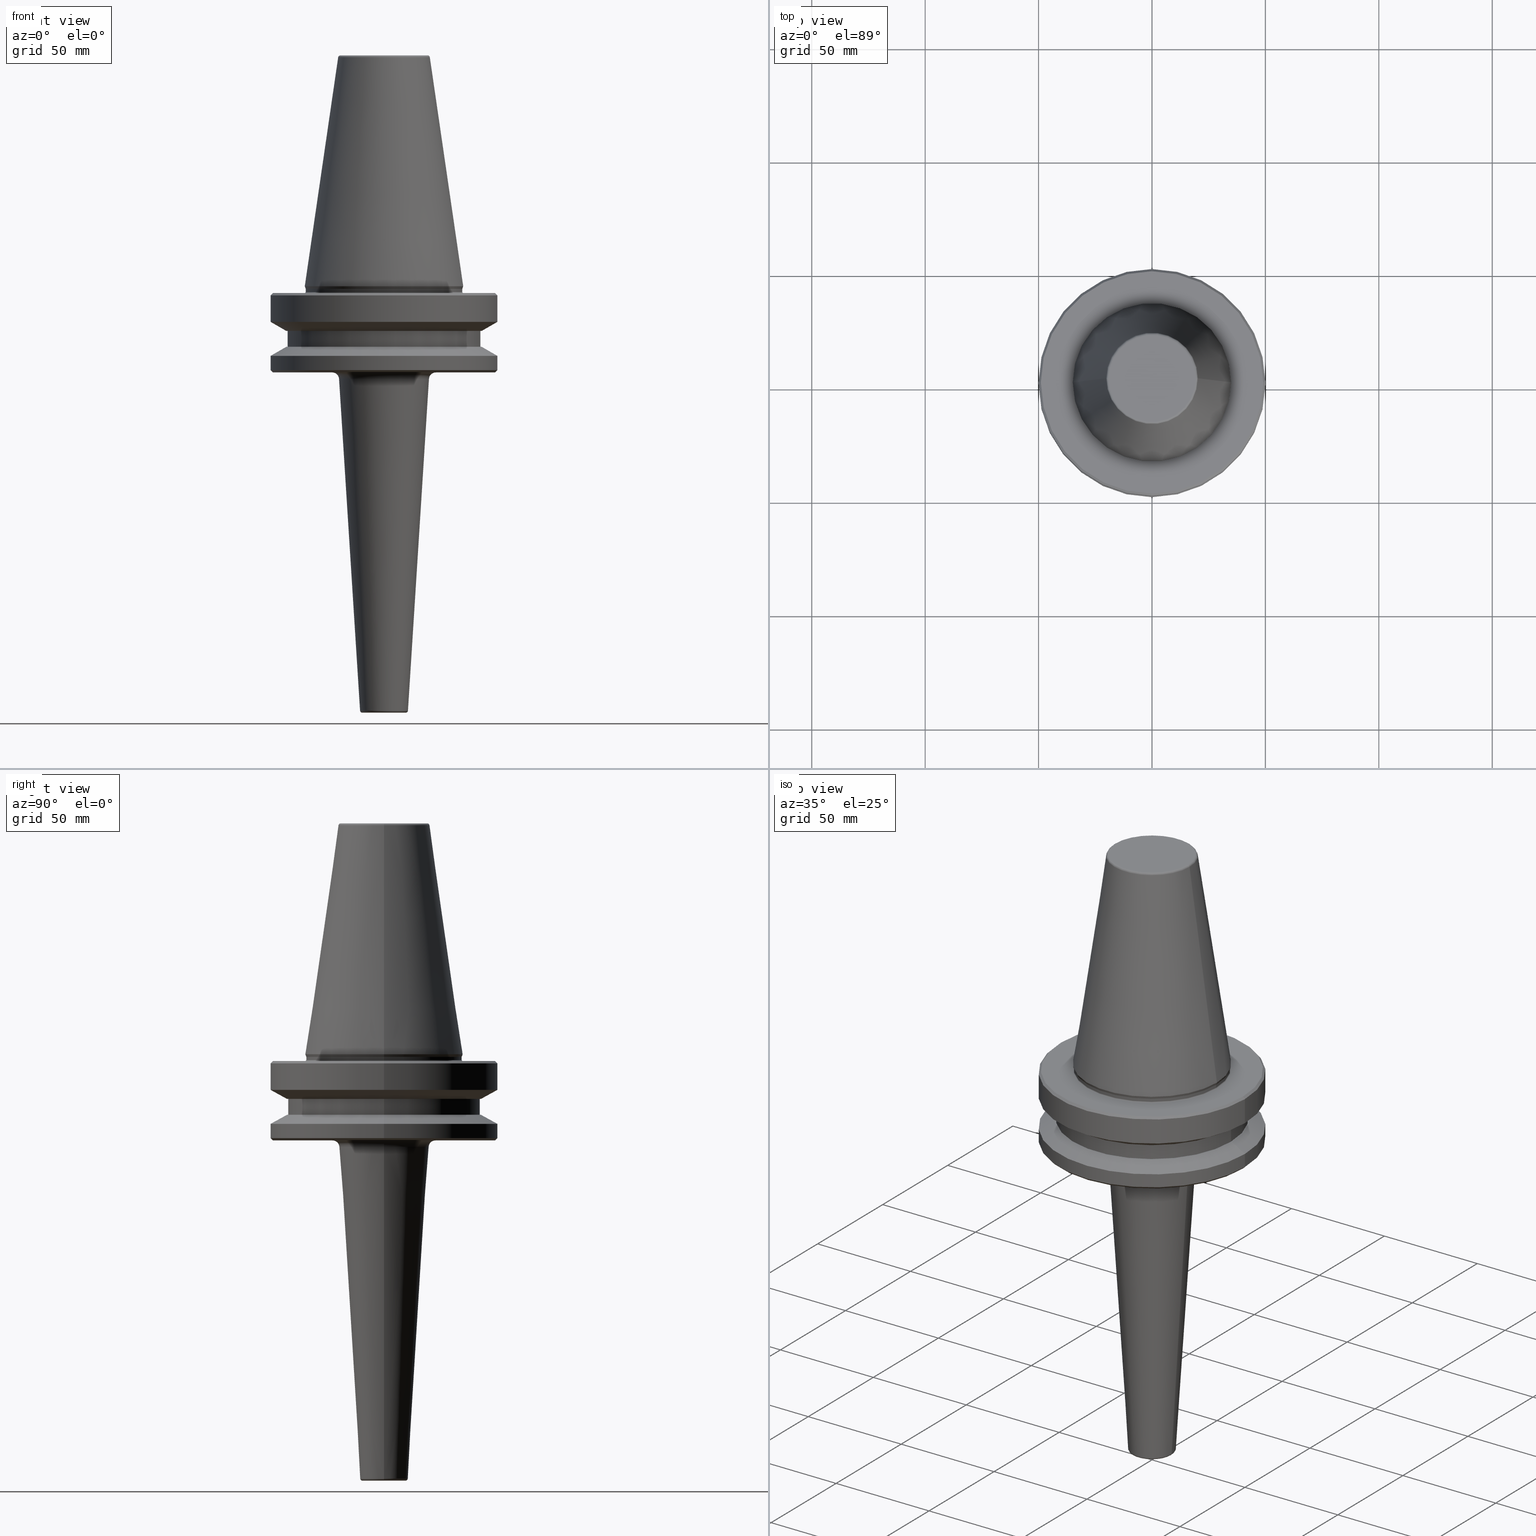
[diagram: canonical four-view strip — front | top / right | iso, engineering-drawing reading convention]
A machine part, canonical four-view strip (front | top / right | iso — engineering-drawing reading convention). The complete STEP part file that produces these views, byte-faithful:
ISO-10303-21;
HEADER;
FILE_DESCRIPTION (( 'STEP AP203' ),
    '1' );
FILE_NAME ('BT50 MCA12 150 AD+B-2.5G 25000 SL.STEP',
    '2019-05-24T11:00:16',
    ( '' ),
    ( '' ),
    'SwSTEP 2.0',
    'SolidWorks 2014',
    '' );
FILE_SCHEMA (( 'CONFIG_CONTROL_DESIGN' ));
ENDSEC;

DATA;
#1 = CC_DESIGN_PERSON_AND_ORGANIZATION_ASSIGNMENT ( #730, #652, ( #895 ) ) ;
#2 = APPLICATION_CONTEXT ( 'configuration controlled 3d designs of mechanical parts and assemblies' ) ;
#3 = DIRECTION ( 'NONE',  ( 0.8660254037844383700, 1.060575238724906500E-016, -0.5000000000000004400 ) ) ;
#4 = DIRECTION ( 'NONE',  ( -0.0000000000000000000, -0.0000000000000000000, 1.000000000000000000 ) ) ;
#5 = APPROVAL_ROLE ( '' ) ;
#6 = DESIGN_CONTEXT ( 'detailed design', #485, 'design' ) ;
#7 = FACE_BOUND ( 'NONE', #844, .T. ) ;
#8 = CIRCLE ( 'NONE', #531, 35.00000000000000000 ) ;
#9 = EDGE_LOOP ( 'NONE', ( #82, #44, #76, #940 ) ) ;
#10 = ORIENTED_EDGE ( 'NONE', *, *, #566, .F. ) ;
#11 = VECTOR ( 'NONE', #814, 1000.000000000000000 ) ;
#12 = CYLINDRICAL_SURFACE ( 'NONE', #778, 50.00000000000000000 ) ;
#13 = CARTESIAN_POINT ( 'NONE',  ( -42.50000000000000000, 5.204748896376250900E-015, -19.70000000000001000 ) ) ;
#14 = CONICAL_SURFACE ( 'NONE', #766, 34.50000000000000000, 0.3490658503988654500 ) ;
#15 = AXIS2_PLACEMENT_3D ( 'NONE', #463, #208, #75 ) ;
#16 = CONICAL_SURFACE ( 'NONE', #250, 43.07217782649103600, 1.047197551196598100 ) ;
#17 = DIRECTION ( 'NONE',  ( 0.1443082272673000800, 1.767266086135278300E-017, -0.9895327864921754600 ) ) ;
#18 = CARTESIAN_POINT ( 'NONE',  ( 20.00000000000003900, 0.0000000000000000000, -38.00000000000000700 ) ) ;
#19 = DATE_AND_TIME ( #247, #466 ) ;
#20 = FACE_BOUND ( 'NONE', #962, .T. ) ;
#21 = CARTESIAN_POINT ( 'NONE',  ( 49.00000000000000000, 0.0000000000000000000, -38.00000000000002100 ) ) ;
#22 = ORIENTED_EDGE ( 'NONE', *, *, #495, .F. ) ;
#23 = DIRECTION ( 'NONE',  ( -0.0000000000000000000, -0.0000000000000000000, 1.000000000000000000 ) ) ;
#24 = CARTESIAN_POINT ( 'NONE',  ( 0.0000000000000000000, 0.0000000000000000000, -2.500000000000002200 ) ) ;
#25 = AXIS2_PLACEMENT_3D ( 'NONE', #817, #663, #263 ) ;
#26 = ORIENTED_EDGE ( 'NONE', *, *, #341, .F. ) ;
#27 = DIRECTION ( 'NONE',  ( -0.0000000000000000000, -0.0000000000000000000, 1.000000000000000000 ) ) ;
#28 = CIRCLE ( 'NONE', #214, 9.561329784881056800 ) ;
#29 = CARTESIAN_POINT ( 'NONE',  ( -20.00000000000003900, 2.449293598294710900E-015, -38.00000000000000700 ) ) ;
#30 = CIRCLE ( 'NONE', #38, 10.55933024260852400 ) ;
#31 = AXIS2_PLACEMENT_3D ( 'NONE', #772, #901, #605 ) ;
#32 = ORIENTED_EDGE ( 'NONE', *, *, #337, .T. ) ;
#33 = CARTESIAN_POINT ( 'NONE',  ( -34.50000000000000000, 4.225031457058368900E-015, -1.167677903268202300 ) ) ;
#34 = DIRECTION ( 'NONE',  ( -0.0000000000000000000, -0.0000000000000000000, 1.000000000000000000 ) ) ;
#35 = ORIENTED_EDGE ( 'NONE', *, *, #649, .F. ) ;
#36 = DIRECTION ( 'NONE',  ( -0.3420201433256682700, 4.188538737676986200E-017, 0.9396926207859086500 ) ) ;
#37 = AXIS2_PLACEMENT_3D ( 'NONE', #647, #865, #68 ) ;
#38 = AXIS2_PLACEMENT_3D ( 'NONE', #477, #854, #396 ) ;
#39 = FACE_OUTER_BOUND ( 'NONE', #713, .T. ) ;
#40 = DIRECTION ( 'NONE',  ( -0.0000000000000000000, -0.0000000000000000000, 1.000000000000000000 ) ) ;
#41 = CARTESIAN_POINT ( 'NONE',  ( 50.00000000000000000, 6.123233995736766100E-015, -3.999999999999989800 ) ) ;
#42 = PERSON_AND_ORGANIZATION ( #453, #924 ) ;
#43 = DIRECTION ( 'NONE',  ( -0.0000000000000000000, -0.0000000000000000000, 1.000000000000000000 ) ) ;
#44 = ORIENTED_EDGE ( 'NONE', *, *, #635, .T. ) ;
#45 = AXIS2_PLACEMENT_3D ( 'NONE', #125, #717, #793 ) ;
#46 = DIRECTION ( 'NONE',  ( 0.0000000000000000000, 0.0000000000000000000, -1.000000000000000000 ) ) ;
#47 = DIRECTION ( 'NONE',  ( 1.000000000000000000, 0.0000000000000000000, 0.0000000000000000000 ) ) ;
#48 = CARTESIAN_POINT ( 'NONE',  ( 49.00000000000000000, 6.062001655779398500E-015, -2.999999999999988900 ) ) ;
#49 = CARTESIAN_POINT ( 'NONE',  ( 0.0000000000000000000, 0.0000000000000000000, -40.81037991303176700 ) ) ;
#50 = CONICAL_SURFACE ( 'NONE', #549, 49.00000000000000000, 0.7853981633974482800 ) ;
#51 = DIRECTION ( 'NONE',  ( 1.000000000000000000, 0.0000000000000000000, 0.0000000000000000000 ) ) ;
#52 = ORIENTED_EDGE ( 'NONE', *, *, #473, .T. ) ;
#53 = DIRECTION ( 'NONE',  ( 1.000000000000000000, 0.0000000000000000000, 0.0000000000000000000 ) ) ;
#54 = ORIENTED_EDGE ( 'NONE', *, *, #607, .F. ) ;
#55 = VECTOR ( 'NONE', #43, 1000.000000000000000 ) ;
#56 = VERTEX_POINT ( 'NONE', #173 ) ;
#57 = DIRECTION ( 'NONE',  ( 1.000000000000000000, 0.0000000000000000000, 0.0000000000000000000 ) ) ;
#58 = CARTESIAN_POINT ( 'NONE',  ( -22.81601064535710300, 2.794155440614850900E-015, -38.00000000000000700 ) ) ;
#59 = AXIS2_PLACEMENT_3D ( 'NONE', #449, #46, #389 ) ;
#60 = PERSON_AND_ORGANIZATION ( #453, #924 ) ;
#61 = FACE_OUTER_BOUND ( 'NONE', #633, .T. ) ;
#62 = CIRCLE ( 'NONE', #711, 20.20381605152244500 ) ;
#63 = AXIS2_PLACEMENT_3D ( 'NONE', #870, #336, #426 ) ;
#64 = DIRECTION ( 'NONE',  ( -0.0000000000000000000, -0.0000000000000000000, 1.000000000000000000 ) ) ;
#65 = DIRECTION ( 'NONE',  ( -0.0000000000000000000, -0.0000000000000000000, 1.000000000000000000 ) ) ;
#66 = VECTOR ( 'NONE', #3, 1000.000000000000000 ) ;
#67 = DIRECTION ( 'NONE',  ( -0.0000000000000000000, -0.0000000000000000000, 1.000000000000000000 ) ) ;
#68 = DIRECTION ( 'NONE',  ( 1.000000000000000000, 0.0000000000000000000, 0.0000000000000000000 ) ) ;
#69 = CARTESIAN_POINT ( 'NONE',  ( 0.0000000000000000000, 0.0000000000000000000, -1.167677903268202300 ) ) ;
#70 = ORIENTED_EDGE ( 'NONE', *, *, #864, .F. ) ;
#71 = AXIS2_PLACEMENT_3D ( 'NONE', #24, #930, #737 ) ;
#72 = ADVANCED_FACE ( 'NONE', ( #972 ), #16, .T. ) ;
#73 = SECURITY_CLASSIFICATION_LEVEL ( 'unclassified' ) ;
#74 = CARTESIAN_POINT ( 'NONE',  ( 0.0000000000000000000, 0.0000000000000000000, 100.7999999999999800 ) ) ;
#75 = DIRECTION ( 'NONE',  ( -1.000000000000000000, 1.224646799147353500E-016, 0.0000000000000000000 ) ) ;
#76 = ORIENTED_EDGE ( 'NONE', *, *, #412, .F. ) ;
#77 = PRODUCT_DEFINITION_FORMATION_WITH_SPECIFIED_SOURCE ( 'ANY', '', #895, .NOT_KNOWN. ) ;
#78 = CARTESIAN_POINT ( 'NONE',  ( 0.0000000000000000000, 0.0000000000000000000, 0.0000000000000000000 ) ) ;
#79 = VECTOR ( 'NONE', #227, 1000.000000000000000 ) ;
#80 =( GEOMETRIC_REPRESENTATION_CONTEXT ( 3 ) GLOBAL_UNCERTAINTY_ASSIGNED_CONTEXT ( ( #731 ) ) GLOBAL_UNIT_ASSIGNED_CONTEXT ( ( #868, #328, #934 ) ) REPRESENTATION_CONTEXT ( 'NONE', 'WORKASPACE' ) );
#81 = DIRECTION ( 'NONE',  ( -0.0000000000000000000, -0.0000000000000000000, 1.000000000000000000 ) ) ;
#82 = ORIENTED_EDGE ( 'NONE', *, *, #258, .T. ) ;
#83 = DIRECTION ( 'NONE',  ( 1.000000000000000000, 0.0000000000000000000, 0.0000000000000000000 ) ) ;
#84 = DIRECTION ( 'NONE',  ( 1.000000000000000000, 0.0000000000000000000, 0.0000000000000000000 ) ) ;
#85 = CIRCLE ( 'NONE', #119, 50.00000000000000000 ) ;
#86 = COORDINATED_UNIVERSAL_TIME_OFFSET ( 5, 30, .AHEAD. ) ;
#87 = AXIS2_PLACEMENT_3D ( 'NONE', #779, #858, #706 ) ;
#88 = CARTESIAN_POINT ( 'NONE',  ( 22.81601064535710300, 0.0000000000000000000, -41.00000000000000700 ) ) ;
#89 = CIRCLE ( 'NONE', #512, 50.00000000000000000 ) ;
#90 = CARTESIAN_POINT ( 'NONE',  ( 34.50000000000000000, 0.0000000000000000000, -2.499999999999988500 ) ) ;
#91 = VECTOR ( 'NONE', #979, 1000.000000000000000 ) ;
#92 = ORIENTED_EDGE ( 'NONE', *, *, #372, .F. ) ;
#93 = CARTESIAN_POINT ( 'NONE',  ( 0.0000000000000000000, 0.0000000000000000000, 100.9443082272672900 ) ) ;
#94 = ADVANCED_FACE ( 'NONE', ( #438 ), #813, .T. ) ;
#95 = DIRECTION ( 'NONE',  ( 1.000000000000000000, 0.0000000000000000000, 0.0000000000000000000 ) ) ;
#96 = AXIS2_PLACEMENT_3D ( 'NONE', #184, #180, #83 ) ;
#97 = ORIENTED_EDGE ( 'NONE', *, *, #346, .F. ) ;
#98 = CARTESIAN_POINT ( 'NONE',  ( 0.0000000000000000000, 0.0000000000000000000, -26.69999999999998900 ) ) ;
#99 = AXIS2_PLACEMENT_3D ( 'NONE', #133, #65, #669 ) ;
#100 = DIRECTION ( 'NONE',  ( 1.000000000000000000, 0.0000000000000000000, 0.0000000000000000000 ) ) ;
#101 = CARTESIAN_POINT ( 'NONE',  ( 0.0000000000000000000, 0.0000000000000000000, -38.00000000000000700 ) ) ;
#102 = ADVANCED_FACE ( 'NONE', ( #241 ), #574, .F. ) ;
#103 = CARTESIAN_POINT ( 'NONE',  ( 0.0000000000000000000, 0.0000000000000000000, 124.5046326327850600 ) ) ;
#104 = ORIENTED_EDGE ( 'NONE', *, *, #936, .F. ) ;
#105 = EDGE_LOOP ( 'NONE', ( #590, #52, #660, #921 ) ) ;
#106 = EDGE_LOOP ( 'NONE', ( #636, #32, #176, #675 ) ) ;
#107 = VERTEX_POINT ( 'NONE', #963 ) ;
#108 = AXIS2_PLACEMENT_3D ( 'NONE', #998, #918, #127 ) ;
#109 = CARTESIAN_POINT ( 'NONE',  ( 0.0000000000000000000, 0.0000000000000000000, -38.00000000000000700 ) ) ;
#110 = ORIENTED_EDGE ( 'NONE', *, *, #919, .T. ) ;
#111 = CARTESIAN_POINT ( 'NONE',  ( 0.0000000000000000000, 0.0000000000000000000, -3.999999999999989800 ) ) ;
#112 = CIRCLE ( 'NONE', #621, 0.9999999999999974500 ) ;
#113 = DIRECTION ( 'NONE',  ( 0.0000000000000000000, 0.0000000000000000000, -1.000000000000000000 ) ) ;
#114 = SHAPE_DEFINITION_REPRESENTATION ( #353, #700 ) ;
#115 = CIRCLE ( 'NONE', #243, 34.92499999999999700 ) ;
#116 = CARTESIAN_POINT ( 'NONE',  ( 0.0000000000000000000, 0.0000000000000000000, 0.0000000000000000000 ) ) ;
#117 = AXIS2_PLACEMENT_3D ( 'NONE', #303, #351, #697 ) ;
#118 = ORIENTED_EDGE ( 'NONE', *, *, #841, .F. ) ;
#119 = AXIS2_PLACEMENT_3D ( 'NONE', #805, #34, #144 ) ;
#120 = FACE_OUTER_BOUND ( 'NONE', #206, .T. ) ;
#121 = DIRECTION ( 'NONE',  ( 1.000000000000000000, 0.0000000000000000000, 0.0000000000000000000 ) ) ;
#122 = EDGE_CURVE ( 'NONE', #395, #400, #138, .T. ) ;
#123 = ORIENTED_EDGE ( 'NONE', *, *, #399, .T. ) ;
#124 = EDGE_CURVE ( 'NONE', #385, #525, #317, .T. ) ;
#125 = CARTESIAN_POINT ( 'NONE',  ( 0.0000000000000000000, 43.07217782649103600, -19.70000000000000300 ) ) ;
#126 = ORIENTED_EDGE ( 'NONE', *, *, #573, .F. ) ;
#127 = DIRECTION ( 'NONE',  ( 1.000000000000000000, 0.0000000000000000000, 0.0000000000000000000 ) ) ;
#128 = ORIENTED_EDGE ( 'NONE', *, *, #211, .T. ) ;
#129 = AXIS2_PLACEMENT_3D ( 'NONE', #229, #945, #744 ) ;
#130 = DIRECTION ( 'NONE',  ( 1.000000000000000000, 0.0000000000000000000, 0.0000000000000000000 ) ) ;
#131 = EDGE_LOOP ( 'NONE', ( #955, #727, #784, #35 ) ) ;
#132 = CIRCLE ( 'NONE', #59, 19.82200927217469300 ) ;
#133 = CARTESIAN_POINT ( 'NONE',  ( 0.0000000000000000000, 0.0000000000000000000, -15.70022000322675400 ) ) ;
#134 = AXIS2_PLACEMENT_3D ( 'NONE', #627, #911, #47 ) ;
#135 = VERTEX_POINT ( 'NONE', #220 ) ;
#136 = ORIENTED_EDGE ( 'NONE', *, *, #523, .F. ) ;
#137 = CARTESIAN_POINT ( 'NONE',  ( -50.00000000000000000, 0.0000000000000000000, -3.999999999999989800 ) ) ;
#138 = CIRCLE ( 'NONE', #570, 43.07217782649105000 ) ;
#139 = EDGE_CURVE ( 'NONE', #339, #56, #154, .T. ) ;
#140 = CC_DESIGN_PERSON_AND_ORGANIZATION_ASSIGNMENT ( #222, #927, ( #150 ) ) ;
#141 = DIRECTION ( 'NONE',  ( -0.7071067811865474600, 8.659560562354931600E-017, 0.7071067811865475700 ) ) ;
#142 = CARTESIAN_POINT ( 'NONE',  ( -50.00000000000000000, 0.0000000000000000000, -30.69977999677324500 ) ) ;
#143 = ADVANCED_FACE ( 'NONE', ( #315 ), #171, .T. ) ;
#144 = DIRECTION ( 'NONE',  ( 1.000000000000000000, 0.0000000000000000000, 0.0000000000000000000 ) ) ;
#145 = CLOSED_SHELL ( 'NONE', ( #309, #366, #201, #792, #143, #235, #480, #178, #798, #539, #72, #500, #609, #94, #867, #386, #723, #376, #256, #554, #189, #1002, #975, #726, #151, #838, #969, #843, #757, #767, #740, #183, #352, #505, #478, #102 ) ) ;
#146 = FACE_OUTER_BOUND ( 'NONE', #774, .T. ) ;
#147 = ORIENTED_EDGE ( 'NONE', *, *, #268, .T. ) ;
#148 = ORIENTED_EDGE ( 'NONE', *, *, #506, .F. ) ;
#149 = AXIS2_PLACEMENT_3D ( 'NONE', #249, #785, #855 ) ;
#150 = SECURITY_CLASSIFICATION ( '', '', #73 ) ;
#151 = ADVANCED_FACE ( 'NONE', ( #340 ), #152, .T. ) ;
#152 = CONICAL_SURFACE ( 'NONE', #646, 50.00000000000000000, 0.7853981633974482800 ) ;
#153 = TOROIDAL_SURFACE ( 'NONE', #71, 35.00000000000000000, 0.5000000000000004400 ) ;
#154 = LINE ( 'NONE', #833, #383 ) ;
#155 = AXIS2_PLACEMENT_3D ( 'NONE', #729, #182, #581 ) ;
#156 = DIRECTION ( 'NONE',  ( -0.0000000000000000000, -0.0000000000000000000, 1.000000000000000000 ) ) ;
#157 = VERTEX_POINT ( 'NONE', #471 ) ;
#158 = DATE_AND_TIME ( #390, #591 ) ;
#159 = VERTEX_POINT ( 'NONE', #213 ) ;
#160 = ORIENTED_EDGE ( 'NONE', *, *, #338, .T. ) ;
#161 = CARTESIAN_POINT ( 'NONE',  ( 42.50000000000000000, 0.0000000000000000000, 124.5046326327850600 ) ) ;
#162 = CYLINDRICAL_SURFACE ( 'NONE', #96, 50.00000000000000000 ) ;
#163 = CYLINDRICAL_SURFACE ( 'NONE', #898, 34.50000000000000000 ) ;
#164 = ORIENTED_EDGE ( 'NONE', *, *, #365, .T. ) ;
#165 = AXIS2_PLACEMENT_3D ( 'NONE', #347, #364, #639 ) ;
#166 = APPLICATION_PROTOCOL_DEFINITION ( 'international standard', 'config_control_design', 1994, #485 ) ;
#167 = ORIENTED_EDGE ( 'NONE', *, *, #522, .F. ) ;
#168 = DIRECTION ( 'NONE',  ( 1.000000000000000000, 0.0000000000000000000, 0.0000000000000000000 ) ) ;
#169 = VECTOR ( 'NONE', #215, 1000.000000000000000 ) ;
#170 = APPROVAL_STATUS ( 'not_yet_approved' ) ;
#171 = CONICAL_SURFACE ( 'NONE', #224, 34.92499999999999700, 0.1448138465474120600 ) ;
#172 = CC_DESIGN_DATE_AND_TIME_ASSIGNMENT ( #417, #571, ( #150 ) ) ;
#173 = CARTESIAN_POINT ( 'NONE',  ( -50.00000000000000000, 6.123233995736766900E-015, -15.70022000322675400 ) ) ;
#174 = DIRECTION ( 'NONE',  ( -0.0000000000000000000, -0.0000000000000000000, 1.000000000000000000 ) ) ;
#175 = ORIENTED_EDGE ( 'NONE', *, *, #287, .T. ) ;
#176 = ORIENTED_EDGE ( 'NONE', *, *, #326, .T. ) ;
#177 = AXIS2_PLACEMENT_3D ( 'NONE', #880, #290, #459 ) ;
#178 = ADVANCED_FACE ( 'NONE', ( #849 ), #153, .F. ) ;
#179 = EDGE_CURVE ( 'NONE', #670, #837, #587, .T. ) ;
#180 = DIRECTION ( 'NONE',  ( -0.0000000000000000000, -0.0000000000000000000, 1.000000000000000000 ) ) ;
#181 = AXIS2_PLACEMENT_3D ( 'NONE', #103, #236, #754 ) ;
#182 = DIRECTION ( 'NONE',  ( 0.0000000000000000000, -1.000000000000000000, 0.0000000000000000000 ) ) ;
#183 = ADVANCED_FACE ( 'NONE', ( #763 ), #828, .F. ) ;
#184 = CARTESIAN_POINT ( 'NONE',  ( 0.0000000000000000000, 0.0000000000000000000, 124.5046326327850600 ) ) ;
#185 = AXIS2_PLACEMENT_3D ( 'NONE', #520, #270, #440 ) ;
#186 = AXIS2_PLACEMENT_3D ( 'NONE', #504, #967, #370 ) ;
#187 = DIRECTION ( 'NONE',  ( 1.000000000000000000, 0.0000000000000000000, 0.0000000000000000000 ) ) ;
#188 = AXIS2_PLACEMENT_3D ( 'NONE', #493, #907, #542 ) ;
#189 = ADVANCED_FACE ( 'NONE', ( #39 ), #665, .T. ) ;
#190 = EDGE_LOOP ( 'NONE', ( #643, #616, #332, #575 ) ) ;
#191 = DIRECTION ( 'NONE',  ( 0.06320669565607287000, 0.0000000000000000000, 0.9980004577274704800 ) ) ;
#192 = CARTESIAN_POINT ( 'NONE',  ( -49.00000000000000000, 0.0000000000000000000, -2.999999999999988900 ) ) ;
#193 = EDGE_LOOP ( 'NONE', ( #599, #929 ) ) ;
#194 = PERSON_AND_ORGANIZATION ( #453, #924 ) ;
#195 = ORIENTED_EDGE ( 'NONE', *, *, #802, .T. ) ;
#196 = CIRCLE ( 'NONE', #487, 42.50000000000000000 ) ;
#197 = DIRECTION ( 'NONE',  ( 1.000000000000000000, 0.0000000000000000000, 0.0000000000000000000 ) ) ;
#198 = AXIS2_PLACEMENT_3D ( 'NONE', #650, #964, #803 ) ;
#199 = EDGE_LOOP ( 'NONE', ( #951, #136 ) ) ;
#200 = CARTESIAN_POINT ( 'NONE',  ( -35.00000000000000000, 4.286263797015736500E-015, -2.500000000000002200 ) ) ;
#201 = ADVANCED_FACE ( 'NONE', ( #498 ), #859, .T. ) ;
#202 = DIRECTION ( 'NONE',  ( 1.000000000000000000, 0.0000000000000000000, 0.0000000000000000000 ) ) ;
#203 = EDGE_CURVE ( 'NONE', #479, #966, #469, .T. ) ;
#204 = CARTESIAN_POINT ( 'NONE',  ( 0.0000000000000000000, 0.0000000000000000000, -41.00000000000000700 ) ) ;
#205 = DIRECTION ( 'NONE',  ( 1.000000000000000000, 0.0000000000000000000, 0.0000000000000000000 ) ) ;
#206 = EDGE_LOOP ( 'NONE', ( #104, #413 ) ) ;
#207 = DIRECTION ( 'NONE',  ( -0.0000000000000000000, -0.0000000000000000000, 1.000000000000000000 ) ) ;
#208 = DIRECTION ( 'NONE',  ( 1.224646799147353200E-016, 1.000000000000000000, 0.0000000000000000000 ) ) ;
#209 = AXIS2_PLACEMENT_3D ( 'NONE', #556, #920, #57 ) ;
#210 = FACE_OUTER_BOUND ( 'NONE', #611, .T. ) ;
#211 = EDGE_CURVE ( 'NONE', #159, #932, #132, .T. ) ;
#212 = CONICAL_SURFACE ( 'NONE', #645, 34.92499999999999700, 0.1448138465474120600 ) ;
#213 = CARTESIAN_POINT ( 'NONE',  ( -19.82200927217469300, 2.427496020783789300E-015, -40.81037991303176700 ) ) ;
#214 = AXIS2_PLACEMENT_3D ( 'NONE', #489, #272, #597 ) ;
#215 = DIRECTION ( 'NONE',  ( -0.0000000000000000000, -0.0000000000000000000, 1.000000000000000000 ) ) ;
#216 = ORIENTED_EDGE ( 'NONE', *, *, #974, .F. ) ;
#217 = ORIENTED_EDGE ( 'NONE', *, *, #649, .T. ) ;
#218 = FACE_OUTER_BOUND ( 'NONE', #826, .T. ) ;
#219 = CIRCLE ( 'NONE', #198, 43.07217782649103600 ) ;
#220 = CARTESIAN_POINT ( 'NONE',  ( 50.00000000000000000, 0.0000000000000000000, -15.70022000322675400 ) ) ;
#221 = CARTESIAN_POINT ( 'NONE',  ( -22.81601064535710300, 2.794155440614850900E-015, -41.00000000000000700 ) ) ;
#222 = PERSON_AND_ORGANIZATION ( #453, #924 ) ;
#223 = AXIS2_PLACEMENT_3D ( 'NONE', #200, #562, #677 ) ;
#224 = AXIS2_PLACEMENT_3D ( 'NONE', #397, #996, #552 ) ;
#225 = VERTEX_POINT ( 'NONE', #48 ) ;
#226 = CARTESIAN_POINT ( 'NONE',  ( 50.00000000000000000, 6.123233995736766100E-015, -30.69977999677324500 ) ) ;
#227 = DIRECTION ( 'NONE',  ( -0.1443082272673000800, 0.0000000000000000000, -0.9895327864921754600 ) ) ;
#228 = ORIENTED_EDGE ( 'NONE', *, *, #769, .T. ) ;
#229 = CARTESIAN_POINT ( 'NONE',  ( 0.0000000000000000000, 49.00000000000000000, -38.00000000000000700 ) ) ;
#230 = AXIS2_PLACEMENT_3D ( 'NONE', #909, #839, #384 ) ;
#231 = VECTOR ( 'NONE', #36, 999.9999999999998900 ) ;
#232 = CARTESIAN_POINT ( 'NONE',  ( 0.0000000000000000000, 0.0000000000000000000, -3.999999999999989800 ) ) ;
#233 = ORIENTED_EDGE ( 'NONE', *, *, #573, .T. ) ;
#234 = FACE_OUTER_BOUND ( 'NONE', #503, .T. ) ;
#235 = ADVANCED_FACE ( 'NONE', ( #354 ), #406, .T. ) ;
#236 = DIRECTION ( 'NONE',  ( -0.0000000000000000000, -0.0000000000000000000, 1.000000000000000000 ) ) ;
#237 = ORIENTED_EDGE ( 'NONE', *, *, #851, .F. ) ;
#238 = ORIENTED_EDGE ( 'NONE', *, *, #473, .F. ) ;
#239 = DIRECTION ( 'NONE',  ( -0.0000000000000000000, -0.0000000000000000000, 1.000000000000000000 ) ) ;
#240 = LINE ( 'NONE', #18, #435 ) ;
#241 = FACE_OUTER_BOUND ( 'NONE', #530, .T. ) ;
#242 = DIRECTION ( 'NONE',  ( -0.0000000000000000000, -0.0000000000000000000, 1.000000000000000000 ) ) ;
#243 = AXIS2_PLACEMENT_3D ( 'NONE', #116, #345, #202 ) ;
#244 = CARTESIAN_POINT ( 'NONE',  ( 10.55933024260852400, 0.0000000000000000000, -187.0632066956561100 ) ) ;
#245 = DIRECTION ( 'NONE',  ( 1.000000000000000000, 0.0000000000000000000, 0.0000000000000000000 ) ) ;
#246 = CARTESIAN_POINT ( 'NONE',  ( 34.50000000000000000, 0.0000000000000000000, 124.5046326327850600 ) ) ;
#247 = CALENDAR_DATE ( 2019, 24, 5 ) ;
#248 = DIRECTION ( 'NONE',  ( -0.0000000000000000000, -0.0000000000000000000, 1.000000000000000000 ) ) ;
#249 = CARTESIAN_POINT ( 'NONE',  ( 0.0000000000000000000, 0.0000000000000000000, -19.70000000000001000 ) ) ;
#250 = AXIS2_PLACEMENT_3D ( 'NONE', #956, #673, #53 ) ;
#251 = EDGE_CURVE ( 'NONE', #401, #856, #959, .T. ) ;
#252 = APPROVAL_STATUS ( 'not_yet_approved' ) ;
#253 = DIRECTION ( 'NONE',  ( -1.000000000000000000, 0.0000000000000000000, 0.0000000000000000000 ) ) ;
#254 = VECTOR ( 'NONE', #997, 1000.000000000000000 ) ;
#255 = AXIS2_PLACEMENT_3D ( 'NONE', #787, #913, #644 ) ;
#256 = ADVANCED_FACE ( 'NONE', ( #815 ), #806, .T. ) ;
#257 = CIRCLE ( 'NONE', #99, 50.00000000000000000 ) ;
#258 = EDGE_CURVE ( 'NONE', #527, #368, #657, .T. ) ;
#259 = EDGE_LOOP ( 'NONE', ( #845, #612, #551, #148 ) ) ;
#260 = EDGE_CURVE ( 'NONE', #837, #670, #430, .T. ) ;
#261 = LINE ( 'NONE', #707, #11 ) ;
#262 = PLANE ( 'NONE',  #63 ) ;
#263 = DIRECTION ( 'NONE',  ( -1.000000000000000000, 0.0000000000000000000, -0.0000000000000000000 ) ) ;
#264 = DIRECTION ( 'NONE',  ( 0.3420201433256682700, 0.0000000000000000000, 0.9396926207859086500 ) ) ;
#265 = CC_DESIGN_DATE_AND_TIME_ASSIGNMENT ( #269, #424, ( #954 ) ) ;
#266 = DIRECTION ( 'NONE',  ( -0.0000000000000000000, -0.0000000000000000000, 1.000000000000000000 ) ) ;
#267 = AXIS2_PLACEMENT_3D ( 'NONE', #524, #358, #889 ) ;
#268 = EDGE_CURVE ( 'NONE', #912, #747, #8, .T. ) ;
#269 = DATE_AND_TIME ( #486, #692 ) ;
#270 = DIRECTION ( 'NONE',  ( -0.0000000000000000000, -0.0000000000000000000, 1.000000000000000000 ) ) ;
#271 = CIRCLE ( 'NONE', #492, 43.07217782649103600 ) ;
#272 = DIRECTION ( 'NONE',  ( -0.0000000000000000000, -0.0000000000000000000, 1.000000000000000000 ) ) ;
#273 = AXIS2_PLACEMENT_3D ( 'NONE', #496, #67, #719 ) ;
#274 = DIRECTION ( 'NONE',  ( -0.0000000000000000000, -0.0000000000000000000, 1.000000000000000000 ) ) ;
#275 = ORIENTED_EDGE ( 'NONE', *, *, #333, .T. ) ;
#276 = DIRECTION ( 'NONE',  ( -0.0000000000000000000, -0.0000000000000000000, 1.000000000000000000 ) ) ;
#277 = DIRECTION ( 'NONE',  ( 1.000000000000000000, 0.0000000000000000000, 0.0000000000000000000 ) ) ;
#278 = LINE ( 'NONE', #226, #66 ) ;
#279 = EDGE_CURVE ( 'NONE', #890, #107, #30, .T. ) ;
#280 = DIRECTION ( 'NONE',  ( -0.8660254037844383700, 0.0000000000000000000, -0.5000000000000004400 ) ) ;
#281 = APPROVAL ( #170, 'UNSPECIFIED' ) ;
#282 = ORIENTED_EDGE ( 'NONE', *, *, #1001, .F. ) ;
#283 = CARTESIAN_POINT ( 'NONE',  ( 0.0000000000000000000, 0.0000000000000000000, -38.00000000000000700 ) ) ;
#284 = EDGE_LOOP ( 'NONE', ( #195, #375, #10, #508 ) ) ;
#285 = ORIENTED_EDGE ( 'NONE', *, *, #335, .F. ) ;
#286 = DIRECTION ( 'NONE',  ( 1.000000000000000000, 0.0000000000000000000, 0.0000000000000000000 ) ) ;
#287 = EDGE_CURVE ( 'NONE', #56, #135, #257, .T. ) ;
#288 = AXIS2_PLACEMENT_3D ( 'NONE', #777, #113, #253 ) ;
#289 = EDGE_CURVE ( 'NONE', #583, #107, #684, .T. ) ;
#290 = DIRECTION ( 'NONE',  ( 0.0000000000000000000, 0.0000000000000000000, -1.000000000000000000 ) ) ;
#291 = APPROVAL_DATE_TIME ( #510, #900 ) ;
#292 = AXIS2_PLACEMENT_3D ( 'NONE', #109, #588, #245 ) ;
#293 = CIRCLE ( 'NONE', #155, 1.000000000000000900 ) ;
#294 = CARTESIAN_POINT ( 'NONE',  ( 0.0000000000000000000, 0.0000000000000000000, 124.5046326327850600 ) ) ;
#295 = CIRCLE ( 'NONE', #755, 20.20381605152244500 ) ;
#296 = DIRECTION ( 'NONE',  ( -0.0000000000000000000, -0.0000000000000000000, 1.000000000000000000 ) ) ;
#297 = ORIENTED_EDGE ( 'NONE', *, *, #541, .T. ) ;
#298 = EDGE_LOOP ( 'NONE', ( #359, #906, #825, #829 ) ) ;
#299 = AXIS2_PLACEMENT_3D ( 'NONE', #111, #685, #305 ) ;
#300 = CARTESIAN_POINT ( 'NONE',  ( 42.50000000000000000, 0.0000000000000000000, -19.70000000000001000 ) ) ;
#301 = CARTESIAN_POINT ( 'NONE',  ( 0.0000000000000000000, 0.0000000000000000000, -3.999999999999989800 ) ) ;
#302 = CIRCLE ( 'NONE', #230, 42.50000000000000000 ) ;
#303 = CARTESIAN_POINT ( 'NONE',  ( 0.0000000000000000000, 0.0000000000000000000, 101.7999999999999800 ) ) ;
#304 = CARTESIAN_POINT ( 'NONE',  ( -34.92499999999999700, 0.0000000000000000000, 0.0000000000000000000 ) ) ;
#305 = DIRECTION ( 'NONE',  ( -1.000000000000000000, 0.0000000000000000000, 0.0000000000000000000 ) ) ;
#306 = EDGE_LOOP ( 'NONE', ( #388, #984 ) ) ;
#307 = EDGE_CURVE ( 'NONE', #747, #912, #989, .T. ) ;
#308 = DIRECTION ( 'NONE',  ( -1.000000000000000000, 0.0000000000000000000, 0.0000000000000000000 ) ) ;
#309 = ADVANCED_FACE ( 'NONE', ( #632 ), #476, .F. ) ;
#310 = DIRECTION ( 'NONE',  ( 1.000000000000000000, 0.0000000000000000000, 0.0000000000000000000 ) ) ;
#311 = ORIENTED_EDGE ( 'NONE', *, *, #468, .F. ) ;
#312 = AXIS2_PLACEMENT_3D ( 'NONE', #819, #592, #277 ) ;
#313 = CARTESIAN_POINT ( 'NONE',  ( 9.561329784881056800, 0.0000000000000000000, -188.0000000000000300 ) ) ;
#314 = EDGE_CURVE ( 'NONE', #401, #225, #544, .T. ) ;
#315 = FACE_OUTER_BOUND ( 'NONE', #738, .T. ) ;
#316 = EDGE_CURVE ( 'NONE', #519, #938, #302, .T. ) ;
#317 = CIRCLE ( 'NONE', #186, 34.50000000000000000 ) ;
#318 = CARTESIAN_POINT ( 'NONE',  ( 50.00000000000000000, 0.0000000000000000000, -37.00000000000002100 ) ) ;
#319 = CIRCLE ( 'NONE', #678, 34.50000000000000000 ) ;
#320 = APPROVAL_PERSON_ORGANIZATION ( #535, #900, #796 ) ;
#321 = EDGE_CURVE ( 'NONE', #395, #613, #278, .T. ) ;
#322 = VECTOR ( 'NONE', #17, 1000.000000000000000 ) ;
#323 = FACE_BOUND ( 'NONE', #788, .T. ) ;
#324 = CARTESIAN_POINT ( 'NONE',  ( 0.0000000000000000000, 0.0000000000000000000, -188.0000000000000000 ) ) ;
#325 = ORIENTED_EDGE ( 'NONE', *, *, #628, .T. ) ;
#326 = EDGE_CURVE ( 'NONE', #425, #856, #497, .T. ) ;
#327 = EDGE_CURVE ( 'NONE', #670, #159, #908, .T. ) ;
#328 =( NAMED_UNIT ( * ) PLANE_ANGLE_UNIT ( ) SI_UNIT ( $, .RADIAN. ) );
#329 = EDGE_LOOP ( 'NONE', ( #126, #765, #529, #917 ) ) ;
#330 = VERTEX_POINT ( 'NONE', #973 ) ;
#331 = PERSON_AND_ORGANIZATION_ROLE ( 'creator' ) ;
#332 = ORIENTED_EDGE ( 'NONE', *, *, #307, .T. ) ;
#333 = EDGE_CURVE ( 'NONE', #107, #159, #742, .T. ) ;
#334 = EDGE_LOOP ( 'NONE', ( #759, #164, #432, #418 ) ) ;
#335 = EDGE_CURVE ( 'NONE', #368, #527, #715, .T. ) ;
#336 = DIRECTION ( 'NONE',  ( 0.0000000000000000000, 0.0000000000000000000, -1.000000000000000000 ) ) ;
#337 = EDGE_CURVE ( 'NONE', #225, #425, #888, .T. ) ;
#338 = EDGE_CURVE ( 'NONE', #966, #394, #115, .T. ) ;
#339 = VERTEX_POINT ( 'NONE', #572 ) ;
#340 = FACE_OUTER_BOUND ( 'NONE', #502, .T. ) ;
#341 = EDGE_CURVE ( 'NONE', #932, #159, #698, .T. ) ;
#342 = FACE_OUTER_BOUND ( 'NONE', #990, .T. ) ;
#343 = DIRECTION ( 'NONE',  ( 0.7071067811865474600, 0.0000000000000000000, 0.7071067811865475700 ) ) ;
#344 = CIRCLE ( 'NONE', #108, 43.07217782649105000 ) ;
#345 = DIRECTION ( 'NONE',  ( -0.0000000000000000000, -0.0000000000000000000, 1.000000000000000000 ) ) ;
#346 = EDGE_CURVE ( 'NONE', #569, #479, #62, .T. ) ;
#347 = CARTESIAN_POINT ( 'NONE',  ( 0.0000000000000000000, 0.0000000000000000000, -38.00000000000002100 ) ) ;
#348 = ORIENTED_EDGE ( 'NONE', *, *, #346, .T. ) ;
#349 = DIRECTION ( 'NONE',  ( 1.000000000000000000, 0.0000000000000000000, 0.0000000000000000000 ) ) ;
#350 = CARTESIAN_POINT ( 'NONE',  ( 0.0000000000000000000, 0.0000000000000000000, -38.00000000000002100 ) ) ;
#351 = DIRECTION ( 'NONE',  ( -0.0000000000000000000, -0.0000000000000000000, 1.000000000000000000 ) ) ;
#352 = ADVANCED_FACE ( 'NONE', ( #120 ), #683, .T. ) ;
#353 = PRODUCT_DEFINITION_SHAPE ( 'NONE', 'NONE',  #954 ) ;
#354 = FACE_OUTER_BOUND ( 'NONE', #9, .T. ) ;
#355 = CARTESIAN_POINT ( 'NONE',  ( 0.0000000000000000000, 0.0000000000000000000, -19.70000000000001000 ) ) ;
#356 = ORIENTED_EDGE ( 'NONE', *, *, #316, .T. ) ;
#357 = ORIENTED_EDGE ( 'NONE', *, *, #472, .F. ) ;
#358 = DIRECTION ( 'NONE',  ( 0.0000000000000000000, -1.000000000000000000, 0.0000000000000000000 ) ) ;
#359 = ORIENTED_EDGE ( 'NONE', *, *, #762, .T. ) ;
#360 = CARTESIAN_POINT ( 'NONE',  ( 0.0000000000000000000, 0.0000000000000000000, -2.999999999999988900 ) ) ;
#361 = ORIENTED_EDGE ( 'NONE', *, *, #580, .F. ) ;
#362 = DIRECTION ( 'NONE',  ( 0.0000000000000000000, 0.0000000000000000000, -1.000000000000000000 ) ) ;
#363 = AXIS2_PLACEMENT_3D ( 'NONE', #101, #732, #741 ) ;
#364 = DIRECTION ( 'NONE',  ( -0.0000000000000000000, -0.0000000000000000000, 1.000000000000000000 ) ) ;
#365 = EDGE_CURVE ( 'NONE', #479, #569, #295, .T. ) ;
#366 = ADVANCED_FACE ( 'NONE', ( #926 ), #514, .T. ) ;
#367 = DIRECTION ( 'NONE',  ( 1.000000000000000000, 0.0000000000000000000, 0.0000000000000000000 ) ) ;
#368 = VERTEX_POINT ( 'NONE', #33 ) ;
#369 = ORIENTED_EDGE ( 'NONE', *, *, #260, .T. ) ;
#370 = DIRECTION ( 'NONE',  ( 1.000000000000000000, 0.0000000000000000000, 0.0000000000000000000 ) ) ;
#371 = CARTESIAN_POINT ( 'NONE',  ( -49.00000000000000000, 6.062001655779398500E-015, -38.00000000000002100 ) ) ;
#372 = EDGE_CURVE ( 'NONE', #400, #395, #344, .T. ) ;
#373 = DIRECTION ( 'NONE',  ( 0.0000000000000000000, 0.0000000000000000000, -1.000000000000000000 ) ) ;
#374 = CARTESIAN_POINT ( 'NONE',  ( -42.50000000000000000, 5.204748896376250900E-015, -26.69999999999998900 ) ) ;
#375 = ORIENTED_EDGE ( 'NONE', *, *, #139, .T. ) ;
#376 = ADVANCED_FACE ( 'NONE', ( #735 ), #12, .T. ) ;
#377 = ORIENTED_EDGE ( 'NONE', *, *, #327, .F. ) ;
#378 = FACE_BOUND ( 'NONE', #193, .T. ) ;
#379 = CARTESIAN_POINT ( 'NONE',  ( 0.0000000000000000000, 0.0000000000000000000, -2.999999999999988900 ) ) ;
#380 = EDGE_CURVE ( 'NONE', #837, #932, #696, .T. ) ;
#381 = EDGE_LOOP ( 'NONE', ( #714, #1003, #110, #285 ) ) ;
#382 = EDGE_CURVE ( 'NONE', #461, #330, #557, .T. ) ;
#383 = VECTOR ( 'NONE', #850, 1000.000000000000000 ) ;
#384 = DIRECTION ( 'NONE',  ( 1.000000000000000000, 0.0000000000000000000, 0.0000000000000000000 ) ) ;
#385 = VERTEX_POINT ( 'NONE', #852 ) ;
#386 = ADVANCED_FACE ( 'NONE', ( #323, #994 ), #578, .F. ) ;
#387 = PLANE ( 'NONE',  #25 ) ;
#388 = ORIENTED_EDGE ( 'NONE', *, *, #1001, .T. ) ;
#389 = DIRECTION ( 'NONE',  ( -1.000000000000000000, 0.0000000000000000000, 0.0000000000000000000 ) ) ;
#390 = CALENDAR_DATE ( 2019, 24, 5 ) ;
#391 = EDGE_LOOP ( 'NONE', ( #976, #437, #725, #238 ) ) ;
#392 = FACE_OUTER_BOUND ( 'NONE', #540, .T. ) ;
#393 = CARTESIAN_POINT ( 'NONE',  ( 0.0000000000000000000, 0.0000000000000000000, -187.0000000000000000 ) ) ;
#394 = VERTEX_POINT ( 'NONE', #722 ) ;
#395 = VERTEX_POINT ( 'NONE', #879 ) ;
#396 = DIRECTION ( 'NONE',  ( 1.000000000000000000, 0.0000000000000000000, 0.0000000000000000000 ) ) ;
#397 = CARTESIAN_POINT ( 'NONE',  ( 0.0000000000000000000, 0.0000000000000000000, 0.0000000000000000000 ) ) ;
#398 = LINE ( 'NONE', #142, #600 ) ;
#399 = EDGE_CURVE ( 'NONE', #157, #624, #944, .T. ) ;
#400 = VERTEX_POINT ( 'NONE', #589 ) ;
#401 = VERTEX_POINT ( 'NONE', #192 ) ;
#402 = DIRECTION ( 'NONE',  ( 1.000000000000000000, 0.0000000000000000000, 0.0000000000000000000 ) ) ;
#403 = CONICAL_SURFACE ( 'NONE', #149, 43.07217782649103600, 1.047197551196598100 ) ;
#404 = DIRECTION ( 'NONE',  ( 1.000000000000000000, 0.0000000000000000000, 0.0000000000000000000 ) ) ;
#405 = FACE_OUTER_BOUND ( 'NONE', #905, .T. ) ;
#406 = CONICAL_SURFACE ( 'NONE', #483, 34.50000000000000000, 0.3490658503988654500 ) ;
#407 = CARTESIAN_POINT ( 'NONE',  ( 43.07217782649103600, 0.0000000000000000000, -19.70000000000001000 ) ) ;
#408 = ORIENTED_EDGE ( 'NONE', *, *, #566, .T. ) ;
#409 = ORIENTED_EDGE ( 'NONE', *, *, #701, .T. ) ;
#410 = VECTOR ( 'NONE', #343, 1000.000000000000000 ) ;
#411 = AXIS2_PLACEMENT_3D ( 'NONE', #681, #947, #451 ) ;
#412 = EDGE_CURVE ( 'NONE', #394, #966, #968, .T. ) ;
#413 = ORIENTED_EDGE ( 'NONE', *, *, #455, .F. ) ;
#414 = CARTESIAN_POINT ( 'NONE',  ( -42.50000000000000000, 5.204748896376250900E-015, 124.5046326327850600 ) ) ;
#415 = CARTESIAN_POINT ( 'NONE',  ( -50.00000000000000000, 6.123233995736766100E-015, -3.999999999999989800 ) ) ;
#416 = ORIENTED_EDGE ( 'NONE', *, *, #892, .F. ) ;
#417 = DATE_AND_TIME ( #619, #818 ) ;
#418 = ORIENTED_EDGE ( 'NONE', *, *, #382, .F. ) ;
#419 = FACE_OUTER_BOUND ( 'NONE', #298, .T. ) ;
#420 = ORIENTED_EDGE ( 'NONE', *, *, #203, .T. ) ;
#421 = ORIENTED_EDGE ( 'NONE', *, *, #279, .T. ) ;
#422 = EDGE_CURVE ( 'NONE', #525, #912, #434, .T. ) ;
#423 = VECTOR ( 'NONE', #264, 999.9999999999998900 ) ;
#424 = DATE_TIME_ROLE ( 'creation_date' ) ;
#425 = VERTEX_POINT ( 'NONE', #676 ) ;
#426 = DIRECTION ( 'NONE',  ( -1.000000000000000000, 0.0000000000000000000, -0.0000000000000000000 ) ) ;
#427 = AXIS2_PLACEMENT_3D ( 'NONE', #948, #516, #205 ) ;
#428 = TOROIDAL_SURFACE ( 'NONE', #273, 19.21428326503027200, 0.9999999999999983300 ) ;
#429 = AXIS2_PLACEMENT_3D ( 'NONE', #88, #982, #373 ) ;
#430 = CIRCLE ( 'NONE', #558, 22.81601064535710300 ) ;
#431 = ORIENTED_EDGE ( 'NONE', *, *, #122, .T. ) ;
#432 = ORIENTED_EDGE ( 'NONE', *, *, #559, .T. ) ;
#433 = FACE_OUTER_BOUND ( 'NONE', #329, .T. ) ;
#434 = CIRCLE ( 'NONE', #267, 0.5000000000000004400 ) ;
#435 = VECTOR ( 'NONE', #191, 1000.000000000000000 ) ;
#436 = CC_DESIGN_APPROVAL ( #606, ( #77 ) ) ;
#437 = ORIENTED_EDGE ( 'NONE', *, *, #455, .T. ) ;
#438 = FACE_OUTER_BOUND ( 'NONE', #555, .T. ) ;
#439 = DIRECTION ( 'NONE',  ( 1.000000000000000000, 0.0000000000000000000, 0.0000000000000000000 ) ) ;
#440 = DIRECTION ( 'NONE',  ( 1.000000000000000000, 0.0000000000000000000, 0.0000000000000000000 ) ) ;
#441 = PERSON_AND_ORGANIZATION ( #453, #924 ) ;
#442 = DIRECTION ( 'NONE',  ( -0.0000000000000000000, -0.0000000000000000000, 1.000000000000000000 ) ) ;
#443 = CIRCLE ( 'NONE', #800, 50.00000000000000000 ) ;
#444 = CARTESIAN_POINT ( 'NONE',  ( 42.50000000000000000, 0.0000000000000000000, -26.69999999999998900 ) ) ;
#445 = AXIS2_PLACEMENT_3D ( 'NONE', #350, #242, #404 ) ;
#446 = AXIS2_PLACEMENT_3D ( 'NONE', #49, #362, #782 ) ;
#447 = DIRECTION ( 'NONE',  ( -1.000000000000000000, 0.0000000000000000000, -0.0000000000000000000 ) ) ;
#448 = DIRECTION ( 'NONE',  ( 0.0000000000000000000, 0.0000000000000000000, -1.000000000000000000 ) ) ;
#449 = CARTESIAN_POINT ( 'NONE',  ( 0.0000000000000000000, 0.0000000000000000000, -40.81037991303176700 ) ) ;
#450 = VECTOR ( 'NONE', #631, 1000.000000000000000 ) ;
#451 = DIRECTION ( 'NONE',  ( 1.000000000000000000, 0.0000000000000000000, 0.0000000000000000000 ) ) ;
#452 = EDGE_LOOP ( 'NONE', ( #952, #914, #576, #866 ) ) ;
#453 = PERSON ( 'UNSPECIFIED', 'UNSPECIFIED', 'UNSPECIFIED', ('UNSPECIFIED'), ('UNSPECIFIED'), ('UNSPECIFIED') ) ;
#454 = CARTESIAN_POINT ( 'NONE',  ( 0.0000000000000000000, 0.0000000000000000000, -41.00000000000000700 ) ) ;
#455 = EDGE_CURVE ( 'NONE', #583, #712, #614, .T. ) ;
#456 = TOROIDAL_SURFACE ( 'NONE', #188, 35.00000000000000000, 0.5000000000000004400 ) ;
#457 = DIRECTION ( 'NONE',  ( 1.000000000000000000, 0.0000000000000000000, 0.0000000000000000000 ) ) ;
#458 = DIRECTION ( 'NONE',  ( 1.224646799147353200E-016, 1.000000000000000000, 0.0000000000000000000 ) ) ;
#459 = DIRECTION ( 'NONE',  ( -1.000000000000000000, 0.0000000000000000000, 0.0000000000000000000 ) ) ;
#460 = VERTEX_POINT ( 'NONE', #444 ) ;
#461 = VERTEX_POINT ( 'NONE', #877 ) ;
#462 = CYLINDRICAL_SURFACE ( 'NONE', #709, 50.00000000000000000 ) ;
#463 = CARTESIAN_POINT ( 'NONE',  ( -9.561329784881056800, 1.170925191664683600E-015, -187.0000000000000000 ) ) ;
#464 = TOROIDAL_SURFACE ( 'NONE', #807, 19.21428326503027200, 0.9999999999999983300 ) ;
#465 = CARTESIAN_POINT ( 'NONE',  ( 0.0000000000000000000, 0.0000000000000000000, -1.167677903268202300 ) ) ;
#466 = LOCAL_TIME ( 16, 30, 15.00000000000000000, #668 ) ;
#467 = CIRCLE ( 'NONE', #209, 50.00000000000000000 ) ;
#468 = EDGE_CURVE ( 'NONE', #856, #425, #582, .T. ) ;
#469 = LINE ( 'NONE', #304, #79 ) ;
#470 = AXIS2_PLACEMENT_3D ( 'NONE', #465, #617, #51 ) ;
#471 = CARTESIAN_POINT ( 'NONE',  ( 49.00000000000000000, 0.0000000000000000000, -38.00000000000002100 ) ) ;
#472 = EDGE_CURVE ( 'NONE', #157, #567, #810, .T. ) ;
#473 = EDGE_CURVE ( 'NONE', #107, #890, #780, .T. ) ;
#474 = DIRECTION ( 'NONE',  ( 0.0000000000000000000, 0.0000000000000000000, -1.000000000000000000 ) ) ;
#475 = LINE ( 'NONE', #658, #254 ) ;
#476 = TOROIDAL_SURFACE ( 'NONE', #935, 22.81601064535710300, 3.000000000000000000 ) ;
#477 = CARTESIAN_POINT ( 'NONE',  ( 0.0000000000000000000, 0.0000000000000000000, -187.0632066956561100 ) ) ;
#478 = ADVANCED_FACE ( 'NONE', ( #638 ), #882, .T. ) ;
#479 = VERTEX_POINT ( 'NONE', #883 ) ;
#480 = ADVANCED_FACE ( 'NONE', ( #419 ), #980, .T. ) ;
#481 = CARTESIAN_POINT ( 'NONE',  ( -50.00000000000000000, 6.123233995736766100E-015, 124.5046326327850600 ) ) ;
#482 = DIRECTION ( 'NONE',  ( 1.000000000000000000, 0.0000000000000000000, 0.0000000000000000000 ) ) ;
#483 = AXIS2_PLACEMENT_3D ( 'NONE', #699, #537, #130 ) ;
#484 = DIRECTION ( 'NONE',  ( -0.0000000000000000000, -0.0000000000000000000, 1.000000000000000000 ) ) ;
#485 = APPLICATION_CONTEXT ( 'configuration controlled 3d designs of mechanical parts and assemblies' ) ;
#486 = CALENDAR_DATE ( 2019, 24, 5 ) ;
#487 = AXIS2_PLACEMENT_3D ( 'NONE', #98, #653, #533 ) ;
#488 = CIRCLE ( 'NONE', #87, 1.000000000000000900 ) ;
#489 = CARTESIAN_POINT ( 'NONE',  ( 0.0000000000000000000, 0.0000000000000000000, -188.0000000000000300 ) ) ;
#490 = CARTESIAN_POINT ( 'NONE',  ( 0.0000000000000000000, 0.0000000000000000000, 100.9443082272672900 ) ) ;
#491 = ORIENTED_EDGE ( 'NONE', *, *, #260, .F. ) ;
#492 = AXIS2_PLACEMENT_3D ( 'NONE', #355, #276, #187 ) ;
#493 = CARTESIAN_POINT ( 'NONE',  ( 0.0000000000000000000, 0.0000000000000000000, -2.500000000000002200 ) ) ;
#494 = DIRECTION ( 'NONE',  ( 1.000000000000000000, 0.0000000000000000000, 0.0000000000000000000 ) ) ;
#495 = EDGE_CURVE ( 'NONE', #385, #747, #620, .T. ) ;
#496 = CARTESIAN_POINT ( 'NONE',  ( 0.0000000000000000000, 0.0000000000000000000, 100.7999999999999800 ) ) ;
#497 = CIRCLE ( 'NONE', #987, 50.00000000000000000 ) ;
#498 = FACE_OUTER_BOUND ( 'NONE', #259, .T. ) ;
#499 = DIRECTION ( 'NONE',  ( -1.000000000000000000, 0.0000000000000000000, 0.0000000000000000000 ) ) ;
#500 = ADVANCED_FACE ( 'NONE', ( #146 ), #710, .T. ) ;
#501 = PERSON_AND_ORGANIZATION_ROLE ( 'design_supplier' ) ;
#502 = EDGE_LOOP ( 'NONE', ( #820, #801, #743, #894 ) ) ;
#503 = EDGE_LOOP ( 'NONE', ( #22, #809, #916, #147 ) ) ;
#504 = CARTESIAN_POINT ( 'NONE',  ( 0.0000000000000000000, 0.0000000000000000000, -2.499999999999988500 ) ) ;
#505 = ADVANCED_FACE ( 'NONE', ( #733 ), #594, .T. ) ;
#506 = EDGE_CURVE ( 'NONE', #712, #890, #293, .T. ) ;
#507 = AXIS2_PLACEMENT_3D ( 'NONE', #393, #207, #688 ) ;
#508 = ORIENTED_EDGE ( 'NONE', *, *, #846, .F. ) ;
#509 = CARTESIAN_POINT ( 'NONE',  ( -50.00000000000000000, 6.123233995736766100E-015, -30.69977999677324500 ) ) ;
#510 = DATE_AND_TIME ( #708, #903 ) ;
#511 = DIRECTION ( 'NONE',  ( -0.0000000000000000000, -0.0000000000000000000, 1.000000000000000000 ) ) ;
#512 = AXIS2_PLACEMENT_3D ( 'NONE', #816, #274, #95 ) ;
#513 = EDGE_CURVE ( 'NONE', #783, #613, #443, .T. ) ;
#514 = CONICAL_SURFACE ( 'NONE', #981, 20.00000000000003900, 0.06324885753307296600 ) ;
#515 = DIRECTION ( 'NONE',  ( -0.0000000000000000000, -0.0000000000000000000, 1.000000000000000000 ) ) ;
#516 = DIRECTION ( 'NONE',  ( -0.0000000000000000000, -0.0000000000000000000, 1.000000000000000000 ) ) ;
#517 = ORIENTED_EDGE ( 'NONE', *, *, #203, .F. ) ;
#518 = CARTESIAN_POINT ( 'NONE',  ( 0.0000000000000000000, 0.0000000000000000000, 124.5046326327850600 ) ) ;
#519 = VERTEX_POINT ( 'NONE', #13 ) ;
#520 = CARTESIAN_POINT ( 'NONE',  ( 0.0000000000000000000, 0.0000000000000000000, 124.5046326327850600 ) ) ;
#521 = VECTOR ( 'NONE', #887, 1000.000000000000000 ) ;
#522 = EDGE_CURVE ( 'NONE', #567, #547, #89, .T. ) ;
#523 = EDGE_CURVE ( 'NONE', #339, #560, #271, .T. ) ;
#524 = CARTESIAN_POINT ( 'NONE',  ( 35.00000000000000000, 0.0000000000000000000, -2.500000000000002200 ) ) ;
#525 = VERTEX_POINT ( 'NONE', #90 ) ;
#526 = AXIS2_PLACEMENT_3D ( 'NONE', #691, #515, #84 ) ;
#527 = VERTEX_POINT ( 'NONE', #662 ) ;
#528 = ORIENTED_EDGE ( 'NONE', *, *, #365, .F. ) ;
#529 = ORIENTED_EDGE ( 'NONE', *, *, #472, .T. ) ;
#530 = EDGE_LOOP ( 'NONE', ( #377, #491, #771, #961 ) ) ;
#531 = AXIS2_PLACEMENT_3D ( 'NONE', #915, #773, #402 ) ;
#532 = FACE_OUTER_BOUND ( 'NONE', #452, .T. ) ;
#533 = DIRECTION ( 'NONE',  ( 1.000000000000000000, 0.0000000000000000000, 0.0000000000000000000 ) ) ;
#534 = CARTESIAN_POINT ( 'NONE',  ( -9.561329784881056800, 1.232035094969860500E-015, -188.0000000000000300 ) ) ;
#535 = PERSON_AND_ORGANIZATION ( #453, #924 ) ;
#536 = LINE ( 'NONE', #965, #169 ) ;
#537 = DIRECTION ( 'NONE',  ( -0.0000000000000000000, -0.0000000000000000000, 1.000000000000000000 ) ) ;
#538 = EDGE_CURVE ( 'NONE', #624, #157, #695, .T. ) ;
#539 = ADVANCED_FACE ( 'NONE', ( #392 ), #162, .T. ) ;
#540 = EDGE_LOOP ( 'NONE', ( #408, #602, #957, #54 ) ) ;
#541 = EDGE_CURVE ( 'NONE', #593, #460, #196, .T. ) ;
#542 = DIRECTION ( 'NONE',  ( 1.000000000000000000, 0.0000000000000000000, 0.0000000000000000000 ) ) ;
#543 = ORIENTED_EDGE ( 'NONE', *, *, #513, .T. ) ;
#544 = CIRCLE ( 'NONE', #862, 49.00000000000000000 ) ;
#545 = CARTESIAN_POINT ( 'NONE',  ( 0.0000000000000000000, 0.0000000000000000000, -26.69999999999998900 ) ) ;
#546 = AXIS2_PLACEMENT_3D ( 'NONE', #454, #64, #897 ) ;
#547 = VERTEX_POINT ( 'NONE', #666 ) ;
#548 = EDGE_LOOP ( 'NONE', ( #598, #752 ) ) ;
#549 = AXIS2_PLACEMENT_3D ( 'NONE', #822, #618, #971 ) ;
#550 = ORIENTED_EDGE ( 'NONE', *, *, #851, .T. ) ;
#551 = ORIENTED_EDGE ( 'NONE', *, *, #279, .F. ) ;
#552 = DIRECTION ( 'NONE',  ( -1.000000000000000000, 0.0000000000000000000, 0.0000000000000000000 ) ) ;
#553 = EDGE_LOOP ( 'NONE', ( #416, #641, #409, #875 ) ) ;
#554 = ADVANCED_FACE ( 'NONE', ( #20, #61 ), #387, .F. ) ;
#555 = EDGE_LOOP ( 'NONE', ( #790, #629, #118, #702 ) ) ;
#556 = CARTESIAN_POINT ( 'NONE',  ( 0.0000000000000000000, 0.0000000000000000000, -15.70022000322675400 ) ) ;
#557 = CIRCLE ( 'NONE', #134, 19.21428326503027200 ) ;
#558 = AXIS2_PLACEMENT_3D ( 'NONE', #734, #40, #674 ) ;
#559 = EDGE_CURVE ( 'NONE', #569, #330, #488, .T. ) ;
#560 = VERTEX_POINT ( 'NONE', #407 ) ;
#561 = CARTESIAN_POINT ( 'NONE',  ( 43.07217782649103600, 0.0000000000000000000, -19.70000000000001000 ) ) ;
#562 = DIRECTION ( 'NONE',  ( 1.224646799147353200E-016, 1.000000000000000000, 0.0000000000000000000 ) ) ;
#563 = CONICAL_SURFACE ( 'NONE', #299, 50.00000000000000000, 0.7853981633974482800 ) ;
#564 = CARTESIAN_POINT ( 'NONE',  ( 35.00000000000000000, 0.0000000000000000000, -2.999999999999995600 ) ) ;
#565 = ORIENTED_EDGE ( 'NONE', *, *, #523, .T. ) ;
#566 = EDGE_CURVE ( 'NONE', #135, #56, #467, .T. ) ;
#567 = VERTEX_POINT ( 'NONE', #318 ) ;
#568 = APPLICATION_PROTOCOL_DEFINITION ( 'international standard', 'config_control_design', 1994, #2 ) ;
#569 = VERTEX_POINT ( 'NONE', #995 ) ;
#570 = AXIS2_PLACEMENT_3D ( 'NONE', #545, #768, #168 ) ;
#571 = DATE_TIME_ROLE ( 'classification_date' ) ;
#572 = CARTESIAN_POINT ( 'NONE',  ( -43.07217782649103600, 5.699027233244276000E-015, -19.70000000000001000 ) ) ;
#573 = EDGE_CURVE ( 'NONE', #624, #547, #791, .T. ) ;
#574 = TOROIDAL_SURFACE ( 'NONE', #546, 22.81601064535710300, 3.000000000000000000 ) ;
#575 = ORIENTED_EDGE ( 'NONE', *, *, #422, .F. ) ;
#576 = ORIENTED_EDGE ( 'NONE', *, *, #690, .T. ) ;
#577 = CARTESIAN_POINT ( 'NONE',  ( -35.00000000000000000, 4.286263797015737300E-015, -2.999999999999995600 ) ) ;
#578 = PLANE ( 'NONE',  #129 ) ;
#579 = AXIS2_PLACEMENT_3D ( 'NONE', #847, #640, #983 ) ;
#580 = EDGE_CURVE ( 'NONE', #569, #394, #770, .T. ) ;
#581 = DIRECTION ( 'NONE',  ( 0.0000000000000000000, 0.0000000000000000000, -1.000000000000000000 ) ) ;
#582 = CIRCLE ( 'NONE', #312, 50.00000000000000000 ) ;
#583 = VERTEX_POINT ( 'NONE', #534 ) ;
#584 = DIRECTION ( 'NONE',  ( -0.0000000000000000000, -0.0000000000000000000, 1.000000000000000000 ) ) ;
#585 = ORIENTED_EDGE ( 'NONE', *, *, #607, .T. ) ;
#586 = DIRECTION ( 'NONE',  ( 1.000000000000000000, 0.0000000000000000000, 0.0000000000000000000 ) ) ;
#587 = CIRCLE ( 'NONE', #292, 22.81601064535710300 ) ;
#588 = DIRECTION ( 'NONE',  ( -0.0000000000000000000, -0.0000000000000000000, 1.000000000000000000 ) ) ;
#589 = CARTESIAN_POINT ( 'NONE',  ( -43.07217782649105000, 0.0000000000000000000, -26.69999999999998900 ) ) ;
#590 = ORIENTED_EDGE ( 'NONE', *, *, #333, .F. ) ;
#591 = LOCAL_TIME ( 16, 30, 15.00000000000000000, #789 ) ;
#592 = DIRECTION ( 'NONE',  ( -0.0000000000000000000, -0.0000000000000000000, 1.000000000000000000 ) ) ;
#593 = VERTEX_POINT ( 'NONE', #374 ) ;
#594 = TOROIDAL_SURFACE ( 'NONE', #427, 9.561329784881056800, 0.9999999999999988900 ) ;
#595 = LINE ( 'NONE', #561, #728 ) ;
#596 = ORIENTED_EDGE ( 'NONE', *, *, #179, .F. ) ;
#597 = DIRECTION ( 'NONE',  ( 1.000000000000000000, 0.0000000000000000000, 0.0000000000000000000 ) ) ;
#598 = ORIENTED_EDGE ( 'NONE', *, *, #399, .F. ) ;
#599 = ORIENTED_EDGE ( 'NONE', *, *, #268, .F. ) ;
#600 = VECTOR ( 'NONE', #280, 1000.000000000000000 ) ;
#601 = EDGE_CURVE ( 'NONE', #56, #856, #821, .T. ) ;
#602 = ORIENTED_EDGE ( 'NONE', *, *, #601, .T. ) ;
#603 = ORIENTED_EDGE ( 'NONE', *, *, #179, .T. ) ;
#604 = CARTESIAN_POINT ( 'NONE',  ( 0.0000000000000000000, 0.0000000000000000000, -2.999999999999988900 ) ) ;
#605 = DIRECTION ( 'NONE',  ( 1.000000000000000000, 0.0000000000000000000, 0.0000000000000000000 ) ) ;
#606 = APPROVAL ( #939, 'UNSPECIFIED' ) ;
#607 = EDGE_CURVE ( 'NONE', #135, #425, #536, .T. ) ;
#608 = FACE_OUTER_BOUND ( 'NONE', #978, .T. ) ;
#609 = ADVANCED_FACE ( 'NONE', ( #986 ), #953, .T. ) ;
#610 = EDGE_CURVE ( 'NONE', #547, #567, #626, .T. ) ;
#611 = EDGE_LOOP ( 'NONE', ( #834, #565, #746, #794 ) ) ;
#612 = ORIENTED_EDGE ( 'NONE', *, *, #289, .T. ) ;
#613 = VERTEX_POINT ( 'NONE', #689 ) ;
#614 = CIRCLE ( 'NONE', #411, 9.561329784881056800 ) ;
#615 = AXIS2_PLACEMENT_3D ( 'NONE', #679, #174, #781 ) ;
#616 = ORIENTED_EDGE ( 'NONE', *, *, #495, .T. ) ;
#617 = DIRECTION ( 'NONE',  ( -0.0000000000000000000, -0.0000000000000000000, 1.000000000000000000 ) ) ;
#618 = DIRECTION ( 'NONE',  ( -0.0000000000000000000, -0.0000000000000000000, 1.000000000000000000 ) ) ;
#619 = CALENDAR_DATE ( 2019, 24, 5 ) ;
#620 = CIRCLE ( 'NONE', #223, 0.5000000000000004400 ) ;
#621 = AXIS2_PLACEMENT_3D ( 'NONE', #874, #458, #931 ) ;
#622 = PLANE ( 'NONE',  #45 ) ;
#623 = DIRECTION ( 'NONE',  ( 1.000000000000000000, 0.0000000000000000000, 0.0000000000000000000 ) ) ;
#624 = VERTEX_POINT ( 'NONE', #371 ) ;
#625 = DIRECTION ( 'NONE',  ( -0.0000000000000000000, -0.0000000000000000000, 1.000000000000000000 ) ) ;
#626 = CIRCLE ( 'NONE', #716, 50.00000000000000000 ) ;
#627 = CARTESIAN_POINT ( 'NONE',  ( 0.0000000000000000000, 0.0000000000000000000, 101.7999999999999800 ) ) ;
#628 = EDGE_CURVE ( 'NONE', #225, #401, #651, .T. ) ;
#629 = ORIENTED_EDGE ( 'NONE', *, *, #892, .T. ) ;
#630 = VECTOR ( 'NONE', #928, 1000.000000000000000 ) ;
#631 = DIRECTION ( 'NONE',  ( -0.7071067811865474600, 0.0000000000000000000, -0.7071067811865475700 ) ) ;
#632 = FACE_OUTER_BOUND ( 'NONE', #703, .T. ) ;
#633 = EDGE_LOOP ( 'NONE', ( #749, #431 ) ) ;
#634 = CARTESIAN_POINT ( 'NONE',  ( 0.0000000000000000000, 0.0000000000000000000, -38.00000000000002100 ) ) ;
#635 = EDGE_CURVE ( 'NONE', #368, #966, #848, .T. ) ;
#636 = ORIENTED_EDGE ( 'NONE', *, *, #628, .F. ) ;
#637 = VECTOR ( 'NONE', #239, 1000.000000000000000 ) ;
#638 = FACE_OUTER_BOUND ( 'NONE', #105, .T. ) ;
#639 = DIRECTION ( 'NONE',  ( 1.000000000000000000, 0.0000000000000000000, 0.0000000000000000000 ) ) ;
#640 = DIRECTION ( 'NONE',  ( 0.0000000000000000000, 0.0000000000000000000, -1.000000000000000000 ) ) ;
#641 = ORIENTED_EDGE ( 'NONE', *, *, #610, .T. ) ;
#642 = PERSON_AND_ORGANIZATION ( #453, #924 ) ;
#643 = ORIENTED_EDGE ( 'NONE', *, *, #124, .F. ) ;
#644 = DIRECTION ( 'NONE',  ( 1.000000000000000000, 0.0000000000000000000, 0.0000000000000000000 ) ) ;
#645 = AXIS2_PLACEMENT_3D ( 'NONE', #78, #891, #499 ) ;
#646 = AXIS2_PLACEMENT_3D ( 'NONE', #232, #474, #308 ) ;
#647 = CARTESIAN_POINT ( 'NONE',  ( 0.0000000000000000000, 0.0000000000000000000, 0.0000000000000000000 ) ) ;
#648 = ORIENTED_EDGE ( 'NONE', *, *, #321, .F. ) ;
#649 = EDGE_CURVE ( 'NONE', #400, #783, #398, .T. ) ;
#650 = CARTESIAN_POINT ( 'NONE',  ( 0.0000000000000000000, 0.0000000000000000000, -19.70000000000001000 ) ) ;
#651 = CIRCLE ( 'NONE', #753, 49.00000000000000000 ) ;
#652 = PERSON_AND_ORGANIZATION_ROLE ( 'design_owner' ) ;
#653 = DIRECTION ( 'NONE',  ( -0.0000000000000000000, -0.0000000000000000000, 1.000000000000000000 ) ) ;
#654 = APPROVAL_ROLE ( '' ) ;
#655 = FACE_OUTER_BOUND ( 'NONE', #199, .T. ) ;
#656 = DIRECTION ( 'NONE',  ( -0.0000000000000000000, -0.0000000000000000000, 1.000000000000000000 ) ) ;
#657 = CIRCLE ( 'NONE', #526, 34.50000000000000000 ) ;
#658 = CARTESIAN_POINT ( 'NONE',  ( -50.00000000000000000, 6.123233995736766100E-015, 124.5046326327850600 ) ) ;
#659 = EDGE_LOOP ( 'NONE', ( #648, #92, #217, #543 ) ) ;
#660 = ORIENTED_EDGE ( 'NONE', *, *, #756, .T. ) ;
#661 = FACE_OUTER_BOUND ( 'NONE', #334, .T. ) ;
#662 = CARTESIAN_POINT ( 'NONE',  ( 34.50000000000000000, 0.0000000000000000000, -1.167677903268202300 ) ) ;
#663 = DIRECTION ( 'NONE',  ( 0.0000000000000000000, 0.0000000000000000000, -1.000000000000000000 ) ) ;
#664 = CONICAL_SURFACE ( 'NONE', #991, 49.00000000000000000, 0.7853981633974482800 ) ;
#665 = CYLINDRICAL_SURFACE ( 'NONE', #31, 42.50000000000000000 ) ;
#666 = CARTESIAN_POINT ( 'NONE',  ( -50.00000000000000000, 6.123233995736766100E-015, -37.00000000000002100 ) ) ;
#667 = CARTESIAN_POINT ( 'NONE',  ( 0.0000000000000000000, 0.0000000000000000000, -187.0632066956561100 ) ) ;
#668 = COORDINATED_UNIVERSAL_TIME_OFFSET ( 5, 30, .AHEAD. ) ;
#669 = DIRECTION ( 'NONE',  ( 1.000000000000000000, 0.0000000000000000000, 0.0000000000000000000 ) ) ;
#670 = VERTEX_POINT ( 'NONE', #58 ) ;
#671 = ORIENTED_EDGE ( 'NONE', *, *, #541, .F. ) ;
#672 = CARTESIAN_POINT ( 'NONE',  ( 0.0000000000000000000, 0.0000000000000000000, 0.0000000000000000000 ) ) ;
#673 = DIRECTION ( 'NONE',  ( -0.0000000000000000000, -0.0000000000000000000, 1.000000000000000000 ) ) ;
#674 = DIRECTION ( 'NONE',  ( 1.000000000000000000, 0.0000000000000000000, 0.0000000000000000000 ) ) ;
#675 = ORIENTED_EDGE ( 'NONE', *, *, #251, .F. ) ;
#676 = CARTESIAN_POINT ( 'NONE',  ( 50.00000000000000000, 0.0000000000000000000, -3.999999999999989800 ) ) ;
#677 = DIRECTION ( 'NONE',  ( -1.000000000000000000, 1.224646799147349500E-016, 0.0000000000000000000 ) ) ;
#678 = AXIS2_PLACEMENT_3D ( 'NONE', #863, #718, #760 ) ;
#679 = CARTESIAN_POINT ( 'NONE',  ( 0.0000000000000000000, 0.0000000000000000000, -26.69999999999998900 ) ) ;
#680 = AXIS2_PLACEMENT_3D ( 'NONE', #360, #81, #310 ) ;
#681 = CARTESIAN_POINT ( 'NONE',  ( 0.0000000000000000000, 0.0000000000000000000, -188.0000000000000300 ) ) ;
#682 = CIRCLE ( 'NONE', #255, 42.50000000000000000 ) ;
#683 = PLANE ( 'NONE',  #745 ) ;
#684 = CIRCLE ( 'NONE', #15, 0.9999999999999991100 ) ;
#685 = DIRECTION ( 'NONE',  ( 0.0000000000000000000, 0.0000000000000000000, -1.000000000000000000 ) ) ;
#686 = CARTESIAN_POINT ( 'NONE',  ( 0.0000000000000000000, 0.0000000000000000000, -37.00000000000002100 ) ) ;
#687 = EDGE_LOOP ( 'NONE', ( #750, #325 ) ) ;
#688 = DIRECTION ( 'NONE',  ( 1.000000000000000000, 0.0000000000000000000, 0.0000000000000000000 ) ) ;
#689 = CARTESIAN_POINT ( 'NONE',  ( 50.00000000000000000, 0.0000000000000000000, -30.69977999677324500 ) ) ;
#690 = EDGE_CURVE ( 'NONE', #527, #394, #799, .T. ) ;
#691 = CARTESIAN_POINT ( 'NONE',  ( 0.0000000000000000000, 0.0000000000000000000, -1.167677903268202300 ) ) ;
#692 = LOCAL_TIME ( 16, 30, 15.00000000000000000, #881 ) ;
#693 = CC_DESIGN_PERSON_AND_ORGANIZATION_ASSIGNMENT ( #60, #331, ( #954 ) ) ;
#694 = DIRECTION ( 'NONE',  ( -0.0000000000000000000, -0.0000000000000000000, 1.000000000000000000 ) ) ;
#695 = CIRCLE ( 'NONE', #445, 49.00000000000000000 ) ;
#696 = CIRCLE ( 'NONE', #429, 3.000000000000002700 ) ;
#697 = DIRECTION ( 'NONE',  ( 1.000000000000000000, 0.0000000000000000000, 0.0000000000000000000 ) ) ;
#698 = CIRCLE ( 'NONE', #446, 19.82200927217469300 ) ;
#699 = CARTESIAN_POINT ( 'NONE',  ( 0.0000000000000000000, 0.0000000000000000000, -1.167677903268202300 ) ) ;
#700 = ADVANCED_BREP_SHAPE_REPRESENTATION ( 'BT50 MCA12 150 AD+B-2.5G 25000 SL', ( #836, #37 ), #80 ) ;
#701 = EDGE_CURVE ( 'NONE', #567, #613, #993, .T. ) ;
#702 = ORIENTED_EDGE ( 'NONE', *, *, #701, .F. ) ;
#703 = EDGE_LOOP ( 'NONE', ( #596, #824, #26, #992 ) ) ;
#704 = CC_DESIGN_APPROVAL ( #900, ( #954 ) ) ;
#705 = ORIENTED_EDGE ( 'NONE', *, *, #933, .F. ) ;
#706 = DIRECTION ( 'NONE',  ( 0.0000000000000000000, 0.0000000000000000000, -1.000000000000000000 ) ) ;
#707 = CARTESIAN_POINT ( 'NONE',  ( -34.50000000000000000, 4.225031457058368900E-015, 124.5046326327850600 ) ) ;
#708 = CALENDAR_DATE ( 2019, 24, 5 ) ;
#709 = AXIS2_PLACEMENT_3D ( 'NONE', #797, #484, #494 ) ;
#710 = CYLINDRICAL_SURFACE ( 'NONE', #943, 42.50000000000000000 ) ;
#711 = AXIS2_PLACEMENT_3D ( 'NONE', #490, #248, #937 ) ;
#712 = VERTEX_POINT ( 'NONE', #313 ) ;
#713 = EDGE_LOOP ( 'NONE', ( #70, #297, #724, #808 ) ) ;
#714 = ORIENTED_EDGE ( 'NONE', *, *, #739, .F. ) ;
#715 = CIRCLE ( 'NONE', #470, 34.50000000000000000 ) ;
#716 = AXIS2_PLACEMENT_3D ( 'NONE', #686, #893, #286 ) ;
#717 = DIRECTION ( 'NONE',  ( 0.0000000000000000000, -0.0000000000000000000, 1.000000000000000000 ) ) ;
#718 = DIRECTION ( 'NONE',  ( -0.0000000000000000000, -0.0000000000000000000, 1.000000000000000000 ) ) ;
#719 = DIRECTION ( 'NONE',  ( 1.000000000000000000, 0.0000000000000000000, 0.0000000000000000000 ) ) ;
#720 = ORIENTED_EDGE ( 'NONE', *, *, #580, .T. ) ;
#721 = MECHANICAL_CONTEXT ( 'NONE', #2, 'mechanical' ) ;
#722 = CARTESIAN_POINT ( 'NONE',  ( 34.92499999999999700, 0.0000000000000000000, 0.0000000000000000000 ) ) ;
#723 = ADVANCED_FACE ( 'NONE', ( #433 ), #664, .T. ) ;
#724 = ORIENTED_EDGE ( 'NONE', *, *, #974, .T. ) ;
#725 = ORIENTED_EDGE ( 'NONE', *, *, #506, .T. ) ;
#726 = ADVANCED_FACE ( 'NONE', ( #218 ), #462, .T. ) ;
#727 = ORIENTED_EDGE ( 'NONE', *, *, #321, .T. ) ;
#728 = VECTOR ( 'NONE', #958, 1000.000000000000000 ) ;
#729 = CARTESIAN_POINT ( 'NONE',  ( 9.561329784881056800, 0.0000000000000000000, -187.0000000000000000 ) ) ;
#730 = PERSON_AND_ORGANIZATION ( #453, #924 ) ;
#731 = UNCERTAINTY_MEASURE_WITH_UNIT (LENGTH_MEASURE( 1.000000000000000100E-005 ), #868, 'distance_accuracy_value', 'NONE');
#732 = DIRECTION ( 'NONE',  ( -0.0000000000000000000, -0.0000000000000000000, 1.000000000000000000 ) ) ;
#733 = FACE_OUTER_BOUND ( 'NONE', #391, .T. ) ;
#734 = CARTESIAN_POINT ( 'NONE',  ( 0.0000000000000000000, 0.0000000000000000000, -38.00000000000000700 ) ) ;
#735 = FACE_OUTER_BOUND ( 'NONE', #553, .T. ) ;
#736 = DIRECTION ( 'NONE',  ( 1.000000000000000000, 0.0000000000000000000, 0.0000000000000000000 ) ) ;
#737 = DIRECTION ( 'NONE',  ( 1.000000000000000000, 0.0000000000000000000, 0.0000000000000000000 ) ) ;
#738 = EDGE_LOOP ( 'NONE', ( #97, #720, #876, #517 ) ) ;
#739 = EDGE_CURVE ( 'NONE', #385, #368, #261, .T. ) ;
#740 = ADVANCED_FACE ( 'NONE', ( #661 ), #464, .T. ) ;
#741 = DIRECTION ( 'NONE',  ( 1.000000000000000000, 0.0000000000000000000, 0.0000000000000000000 ) ) ;
#742 = LINE ( 'NONE', #29, #521 ) ;
#743 = ORIENTED_EDGE ( 'NONE', *, *, #251, .T. ) ;
#744 = DIRECTION ( 'NONE',  ( 1.000000000000000000, 0.0000000000000000000, 0.0000000000000000000 ) ) ;
#745 = AXIS2_PLACEMENT_3D ( 'NONE', #324, #448, #447 ) ;
#746 = ORIENTED_EDGE ( 'NONE', *, *, #846, .T. ) ;
#747 = VERTEX_POINT ( 'NONE', #577 ) ;
#748 = ORIENTED_EDGE ( 'NONE', *, *, #756, .F. ) ;
#749 = ORIENTED_EDGE ( 'NONE', *, *, #372, .T. ) ;
#750 = ORIENTED_EDGE ( 'NONE', *, *, #314, .T. ) ;
#751 = CARTESIAN_POINT ( 'NONE',  ( -34.50000000000000000, 4.225031457058368900E-015, -1.167677903268202300 ) ) ;
#752 = ORIENTED_EDGE ( 'NONE', *, *, #538, .F. ) ;
#753 = AXIS2_PLACEMENT_3D ( 'NONE', #604, #960, #367 ) ;
#754 = DIRECTION ( 'NONE',  ( 1.000000000000000000, 0.0000000000000000000, 0.0000000000000000000 ) ) ;
#755 = AXIS2_PLACEMENT_3D ( 'NONE', #93, #970, #835 ) ;
#756 = EDGE_CURVE ( 'NONE', #890, #932, #240, .T. ) ;
#757 = ADVANCED_FACE ( 'NONE', ( #532 ), #14, .T. ) ;
#758 = DIRECTION ( 'NONE',  ( -0.0000000000000000000, -0.0000000000000000000, 1.000000000000000000 ) ) ;
#759 = ORIENTED_EDGE ( 'NONE', *, *, #769, .F. ) ;
#760 = DIRECTION ( 'NONE',  ( 1.000000000000000000, 0.0000000000000000000, 0.0000000000000000000 ) ) ;
#761 = DIRECTION ( 'NONE',  ( 1.224646799147353200E-016, 1.000000000000000000, 0.0000000000000000000 ) ) ;
#762 = EDGE_CURVE ( 'NONE', #525, #385, #319, .T. ) ;
#763 = FACE_OUTER_BOUND ( 'NONE', #306, .T. ) ;
#764 = FACE_OUTER_BOUND ( 'NONE', #687, .T. ) ;
#765 = ORIENTED_EDGE ( 'NONE', *, *, #538, .T. ) ;
#766 = AXIS2_PLACEMENT_3D ( 'NONE', #69, #442, #884 ) ;
#767 = ADVANCED_FACE ( 'NONE', ( #342 ), #212, .T. ) ;
#768 = DIRECTION ( 'NONE',  ( -0.0000000000000000000, -0.0000000000000000000, 1.000000000000000000 ) ) ;
#769 = EDGE_CURVE ( 'NONE', #479, #461, #112, .T. ) ;
#770 = LINE ( 'NONE', #988, #322 ) ;
#771 = ORIENTED_EDGE ( 'NONE', *, *, #380, .T. ) ;
#772 = CARTESIAN_POINT ( 'NONE',  ( 0.0000000000000000000, 0.0000000000000000000, 124.5046326327850600 ) ) ;
#773 = DIRECTION ( 'NONE',  ( -0.0000000000000000000, -0.0000000000000000000, 1.000000000000000000 ) ) ;
#774 = EDGE_LOOP ( 'NONE', ( #550, #775, #705, #216 ) ) ;
#775 = ORIENTED_EDGE ( 'NONE', *, *, #864, .T. ) ;
#776 = PRODUCT_RELATED_PRODUCT_CATEGORY ( 'detail', '', ( #895 ) ) ;
#777 = CARTESIAN_POINT ( 'NONE',  ( 0.0000000000000000000, 0.0000000000000000000, -30.69977999677324500 ) ) ;
#778 = AXIS2_PLACEMENT_3D ( 'NONE', #823, #758, #623 ) ;
#779 = CARTESIAN_POINT ( 'NONE',  ( 19.21428326503027200, 0.0000000000000000000, 100.7999999999999800 ) ) ;
#780 = CIRCLE ( 'NONE', #1000, 10.55933024260852400 ) ;
#781 = DIRECTION ( 'NONE',  ( 1.000000000000000000, 0.0000000000000000000, 0.0000000000000000000 ) ) ;
#782 = DIRECTION ( 'NONE',  ( -1.000000000000000000, 0.0000000000000000000, 0.0000000000000000000 ) ) ;
#783 = VERTEX_POINT ( 'NONE', #509 ) ;
#784 = ORIENTED_EDGE ( 'NONE', *, *, #841, .T. ) ;
#785 = DIRECTION ( 'NONE',  ( -0.0000000000000000000, -0.0000000000000000000, 1.000000000000000000 ) ) ;
#786 = DIRECTION ( 'NONE',  ( -0.0000000000000000000, -0.0000000000000000000, 1.000000000000000000 ) ) ;
#787 = CARTESIAN_POINT ( 'NONE',  ( 0.0000000000000000000, 0.0000000000000000000, -19.70000000000001000 ) ) ;
#788 = EDGE_LOOP ( 'NONE', ( #369, #603 ) ) ;
#789 = COORDINATED_UNIVERSAL_TIME_OFFSET ( 5, 30, .AHEAD. ) ;
#790 = ORIENTED_EDGE ( 'NONE', *, *, #522, .T. ) ;
#791 = LINE ( 'NONE', #946, #861 ) ;
#792 = ADVANCED_FACE ( 'NONE', ( #405 ), #428, .T. ) ;
#793 = DIRECTION ( 'NONE',  ( 1.000000000000000000, 0.0000000000000000000, 0.0000000000000000000 ) ) ;
#794 = ORIENTED_EDGE ( 'NONE', *, *, #287, .F. ) ;
#795 = CARTESIAN_POINT ( 'NONE',  ( 22.81601064535710300, 0.0000000000000000000, -38.00000000000000700 ) ) ;
#796 = APPROVAL_ROLE ( '' ) ;
#797 = CARTESIAN_POINT ( 'NONE',  ( 0.0000000000000000000, 0.0000000000000000000, 124.5046326327850600 ) ) ;
#798 = ADVANCED_FACE ( 'NONE', ( #923 ), #563, .T. ) ;
#799 = LINE ( 'NONE', #922, #423 ) ;
#800 = AXIS2_PLACEMENT_3D ( 'NONE', #811, #511, #736 ) ;
#801 = ORIENTED_EDGE ( 'NONE', *, *, #314, .F. ) ;
#802 = EDGE_CURVE ( 'NONE', #560, #339, #219, .T. ) ;
#803 = DIRECTION ( 'NONE',  ( 1.000000000000000000, 0.0000000000000000000, 0.0000000000000000000 ) ) ;
#804 = CIRCLE ( 'NONE', #117, 19.21428326503027200 ) ;
#805 = CARTESIAN_POINT ( 'NONE',  ( 0.0000000000000000000, 0.0000000000000000000, -30.69977999677324500 ) ) ;
#806 = CONICAL_SURFACE ( 'NONE', #288, 50.00000000000000000, 1.047197551196597200 ) ;
#807 = AXIS2_PLACEMENT_3D ( 'NONE', #74, #27, #482 ) ;
#808 = ORIENTED_EDGE ( 'NONE', *, *, #316, .F. ) ;
#809 = ORIENTED_EDGE ( 'NONE', *, *, #762, .F. ) ;
#810 = LINE ( 'NONE', #21, #410 ) ;
#811 = CARTESIAN_POINT ( 'NONE',  ( 0.0000000000000000000, 0.0000000000000000000, -30.69977999677324500 ) ) ;
#812 = CARTESIAN_POINT ( 'NONE',  ( -34.92499999999999700, 4.277078946022131700E-015, 0.0000000000000000000 ) ) ;
#813 = CYLINDRICAL_SURFACE ( 'NONE', #181, 50.00000000000000000 ) ;
#814 = DIRECTION ( 'NONE',  ( -0.0000000000000000000, -0.0000000000000000000, 1.000000000000000000 ) ) ;
#815 = FACE_OUTER_BOUND ( 'NONE', #659, .T. ) ;
#816 = CARTESIAN_POINT ( 'NONE',  ( 0.0000000000000000000, 0.0000000000000000000, -37.00000000000002100 ) ) ;
#817 = CARTESIAN_POINT ( 'NONE',  ( 0.0000000000000000000, 42.50000000000000000, -26.70000000000000300 ) ) ;
#818 = LOCAL_TIME ( 16, 30, 15.00000000000000000, #999 ) ;
#819 = CARTESIAN_POINT ( 'NONE',  ( 0.0000000000000000000, 0.0000000000000000000, -3.999999999999989800 ) ) ;
#820 = ORIENTED_EDGE ( 'NONE', *, *, #337, .F. ) ;
#821 = LINE ( 'NONE', #481, #925 ) ;
#822 = CARTESIAN_POINT ( 'NONE',  ( 0.0000000000000000000, 0.0000000000000000000, -38.00000000000002100 ) ) ;
#823 = CARTESIAN_POINT ( 'NONE',  ( 0.0000000000000000000, 0.0000000000000000000, 124.5046326327850600 ) ) ;
#824 = ORIENTED_EDGE ( 'NONE', *, *, #327, .T. ) ;
#825 = ORIENTED_EDGE ( 'NONE', *, *, #258, .F. ) ;
#826 = EDGE_LOOP ( 'NONE', ( #830, #175, #585, #311 ) ) ;
#827 = LINE ( 'NONE', #161, #630 ) ;
#828 = PLANE ( 'NONE',  #579 ) ;
#829 = ORIENTED_EDGE ( 'NONE', *, *, #919, .F. ) ;
#830 = ORIENTED_EDGE ( 'NONE', *, *, #601, .F. ) ;
#831 = LINE ( 'NONE', #414, #55 ) ;
#832 = DIRECTION ( 'NONE',  ( -0.0000000000000000000, -0.0000000000000000000, 1.000000000000000000 ) ) ;
#833 = CARTESIAN_POINT ( 'NONE',  ( -43.07217782649103600, 5.274820470751785100E-015, -19.70000000000001000 ) ) ;
#834 = ORIENTED_EDGE ( 'NONE', *, *, #139, .F. ) ;
#835 = DIRECTION ( 'NONE',  ( 1.000000000000000000, 0.0000000000000000000, 0.0000000000000000000 ) ) ;
#836 = MANIFOLD_SOLID_BREP ( 'Fillet1', #145 ) ;
#837 = VERTEX_POINT ( 'NONE', #795 ) ;
#838 = ADVANCED_FACE ( 'NONE', ( #378, #764 ), #262, .F. ) ;
#839 = DIRECTION ( 'NONE',  ( -0.0000000000000000000, -0.0000000000000000000, 1.000000000000000000 ) ) ;
#840 = APPROVAL_DATE_TIME ( #19, #606 ) ;
#841 = EDGE_CURVE ( 'NONE', #613, #783, #85, .T. ) ;
#842 = DIRECTION ( 'NONE',  ( -1.000000000000000000, 1.224646799147353500E-016, 0.0000000000000000000 ) ) ;
#843 = ADVANCED_FACE ( 'NONE', ( #902 ), #163, .T. ) ;
#844 = EDGE_LOOP ( 'NONE', ( #857, #356 ) ) ;
#845 = ORIENTED_EDGE ( 'NONE', *, *, #936, .T. ) ;
#846 = EDGE_CURVE ( 'NONE', #560, #135, #595, .T. ) ;
#847 = CARTESIAN_POINT ( 'NONE',  ( 0.0000000000000000000, 0.0000000000000000000, 101.8000000000000000 ) ) ;
#848 = LINE ( 'NONE', #751, #231 ) ;
#849 = FACE_OUTER_BOUND ( 'NONE', #190, .T. ) ;
#850 = DIRECTION ( 'NONE',  ( -0.8660254037844388200, 1.060575238724907200E-016, 0.4999999999999997200 ) ) ;
#851 = EDGE_CURVE ( 'NONE', #460, #593, #904, .T. ) ;
#852 = CARTESIAN_POINT ( 'NONE',  ( -34.50000000000000000, 4.255647627037052700E-015, -2.499999999999988500 ) ) ;
#853 = VECTOR ( 'NONE', #4, 1000.000000000000000 ) ;
#854 = DIRECTION ( 'NONE',  ( -0.0000000000000000000, -0.0000000000000000000, 1.000000000000000000 ) ) ;
#855 = DIRECTION ( 'NONE',  ( 1.000000000000000000, 0.0000000000000000000, 0.0000000000000000000 ) ) ;
#856 = VERTEX_POINT ( 'NONE', #415 ) ;
#857 = ORIENTED_EDGE ( 'NONE', *, *, #933, .T. ) ;
#858 = DIRECTION ( 'NONE',  ( 0.0000000000000000000, -1.000000000000000000, 0.0000000000000000000 ) ) ;
#859 = TOROIDAL_SURFACE ( 'NONE', #507, 9.561329784881056800, 0.9999999999999988900 ) ;
#860 = APPROVAL_PERSON_ORGANIZATION ( #42, #606, #5 ) ;
#861 = VECTOR ( 'NONE', #141, 1000.000000000000000 ) ;
#862 = AXIS2_PLACEMENT_3D ( 'NONE', #379, #296, #121 ) ;
#863 = CARTESIAN_POINT ( 'NONE',  ( 0.0000000000000000000, 0.0000000000000000000, -2.499999999999988500 ) ) ;
#864 = EDGE_CURVE ( 'NONE', #593, #519, #831, .T. ) ;
#865 = DIRECTION ( 'NONE',  ( 0.0000000000000000000, 0.0000000000000000000, 1.000000000000000000 ) ) ;
#866 = ORIENTED_EDGE ( 'NONE', *, *, #338, .F. ) ;
#867 = ADVANCED_FACE ( 'NONE', ( #608 ), #50, .T. ) ;
#868 =( LENGTH_UNIT ( ) NAMED_UNIT ( * ) SI_UNIT ( .MILLI., .METRE. ) );
#869 = CARTESIAN_POINT ( 'NONE',  ( 50.00000000000000000, 0.0000000000000000000, 124.5046326327850600 ) ) ;
#870 = CARTESIAN_POINT ( 'NONE',  ( 0.0000000000000000000, 35.00000000000000000, -3.000000000000002700 ) ) ;
#871 = PERSON_AND_ORGANIZATION_ROLE ( 'creator' ) ;
#872 = CC_DESIGN_APPROVAL ( #281, ( #150 ) ) ;
#873 = LINE ( 'NONE', #246, #853 ) ;
#874 = CARTESIAN_POINT ( 'NONE',  ( -19.21428326503027200, 2.353071049842987900E-015, 100.7999999999999800 ) ) ;
#875 = ORIENTED_EDGE ( 'NONE', *, *, #513, .F. ) ;
#876 = ORIENTED_EDGE ( 'NONE', *, *, #412, .T. ) ;
#877 = CARTESIAN_POINT ( 'NONE',  ( -19.21428326503027200, 2.413662457824437800E-015, 101.7999999999999800 ) ) ;
#878 = CARTESIAN_POINT ( 'NONE',  ( 19.82200927217469300, 0.0000000000000000000, -40.81037991303176700 ) ) ;
#879 = CARTESIAN_POINT ( 'NONE',  ( 43.07217782649105000, 5.699027233244276800E-015, -26.69999999999998900 ) ) ;
#880 = CARTESIAN_POINT ( 'NONE',  ( 0.0000000000000000000, 0.0000000000000000000, -30.69977999677324500 ) ) ;
#881 = COORDINATED_UNIVERSAL_TIME_OFFSET ( 5, 30, .AHEAD. ) ;
#882 = CONICAL_SURFACE ( 'NONE', #363, 20.00000000000003900, 0.06324885753307296600 ) ;
#883 = CARTESIAN_POINT ( 'NONE',  ( -20.20381605152244500, 0.0000000000000000000, 100.9443082272672900 ) ) ;
#884 = DIRECTION ( 'NONE',  ( 1.000000000000000000, 0.0000000000000000000, 0.0000000000000000000 ) ) ;
#885 = ORIENTED_EDGE ( 'NONE', *, *, #559, .F. ) ;
#886 = CC_DESIGN_SECURITY_CLASSIFICATION ( #150, ( #77 ) ) ;
#887 = DIRECTION ( 'NONE',  ( -0.06320669565607287000, 7.740587751989055400E-018, 0.9980004577274704800 ) ) ;
#888 = LINE ( 'NONE', #41, #91 ) ;
#889 = DIRECTION ( 'NONE',  ( 0.0000000000000000000, 0.0000000000000000000, -1.000000000000000000 ) ) ;
#890 = VERTEX_POINT ( 'NONE', #244 ) ;
#891 = DIRECTION ( 'NONE',  ( 0.0000000000000000000, 0.0000000000000000000, -1.000000000000000000 ) ) ;
#892 = EDGE_CURVE ( 'NONE', #547, #783, #475, .T. ) ;
#893 = DIRECTION ( 'NONE',  ( -0.0000000000000000000, -0.0000000000000000000, 1.000000000000000000 ) ) ;
#894 = ORIENTED_EDGE ( 'NONE', *, *, #468, .T. ) ;
#895 = PRODUCT ( 'BT50 MCA12 150 AD+B-2.5G 25000 SL', 'BT50 MCA12 150 AD+B-2.5G 25000 SL', '', ( #721 ) ) ;
#896 = EDGE_LOOP ( 'NONE', ( #421, #275, #128, #748 ) ) ;
#897 = DIRECTION ( 'NONE',  ( 1.000000000000000000, 0.0000000000000000000, 0.0000000000000000000 ) ) ;
#898 = AXIS2_PLACEMENT_3D ( 'NONE', #294, #656, #985 ) ;
#899 = CC_DESIGN_PERSON_AND_ORGANIZATION_ASSIGNMENT ( #441, #501, ( #77 ) ) ;
#900 = APPROVAL ( #252, 'UNSPECIFIED' ) ;
#901 = DIRECTION ( 'NONE',  ( -0.0000000000000000000, -0.0000000000000000000, 1.000000000000000000 ) ) ;
#902 = FACE_OUTER_BOUND ( 'NONE', #381, .T. ) ;
#903 = LOCAL_TIME ( 16, 30, 15.00000000000000000, #86 ) ;
#904 = CIRCLE ( 'NONE', #615, 42.50000000000000000 ) ;
#905 = EDGE_LOOP ( 'NONE', ( #348, #228, #282, #885 ) ) ;
#906 = ORIENTED_EDGE ( 'NONE', *, *, #739, .T. ) ;
#907 = DIRECTION ( 'NONE',  ( -0.0000000000000000000, -0.0000000000000000000, 1.000000000000000000 ) ) ;
#908 = CIRCLE ( 'NONE', #942, 2.999999999999999100 ) ;
#909 = CARTESIAN_POINT ( 'NONE',  ( 0.0000000000000000000, 0.0000000000000000000, -19.70000000000001000 ) ) ;
#910 = AXIS2_PLACEMENT_3D ( 'NONE', #672, #266, #197 ) ;
#911 = DIRECTION ( 'NONE',  ( -0.0000000000000000000, -0.0000000000000000000, 1.000000000000000000 ) ) ;
#912 = VERTEX_POINT ( 'NONE', #564 ) ;
#913 = DIRECTION ( 'NONE',  ( -0.0000000000000000000, -0.0000000000000000000, 1.000000000000000000 ) ) ;
#914 = ORIENTED_EDGE ( 'NONE', *, *, #335, .T. ) ;
#915 = CARTESIAN_POINT ( 'NONE',  ( 0.0000000000000000000, 0.0000000000000000000, -2.999999999999988900 ) ) ;
#916 = ORIENTED_EDGE ( 'NONE', *, *, #422, .T. ) ;
#917 = ORIENTED_EDGE ( 'NONE', *, *, #610, .F. ) ;
#918 = DIRECTION ( 'NONE',  ( -0.0000000000000000000, -0.0000000000000000000, 1.000000000000000000 ) ) ;
#919 = EDGE_CURVE ( 'NONE', #525, #527, #873, .T. ) ;
#920 = DIRECTION ( 'NONE',  ( -0.0000000000000000000, -0.0000000000000000000, 1.000000000000000000 ) ) ;
#921 = ORIENTED_EDGE ( 'NONE', *, *, #341, .T. ) ;
#922 = CARTESIAN_POINT ( 'NONE',  ( 34.50000000000000000, 0.0000000000000000000, -1.167677903268202300 ) ) ;
#923 = FACE_OUTER_BOUND ( 'NONE', #106, .T. ) ;
#924 = ORGANIZATION ( 'UNSPECIFIED', 'UNSPECIFIED', '' ) ;
#925 = VECTOR ( 'NONE', #832, 1000.000000000000000 ) ;
#926 = FACE_OUTER_BOUND ( 'NONE', #896, .T. ) ;
#927 = PERSON_AND_ORGANIZATION_ROLE ( 'classification_officer' ) ;
#928 = DIRECTION ( 'NONE',  ( -0.0000000000000000000, -0.0000000000000000000, 1.000000000000000000 ) ) ;
#929 = ORIENTED_EDGE ( 'NONE', *, *, #307, .F. ) ;
#930 = DIRECTION ( 'NONE',  ( -0.0000000000000000000, -0.0000000000000000000, 1.000000000000000000 ) ) ;
#931 = DIRECTION ( 'NONE',  ( -1.000000000000000000, 1.224646799147353700E-016, 0.0000000000000000000 ) ) ;
#932 = VERTEX_POINT ( 'NONE', #878 ) ;
#933 = EDGE_CURVE ( 'NONE', #938, #519, #682, .T. ) ;
#934 =( NAMED_UNIT ( * ) SI_UNIT ( $, .STERADIAN. ) SOLID_ANGLE_UNIT ( ) );
#935 = AXIS2_PLACEMENT_3D ( 'NONE', #204, #625, #949 ) ;
#936 = EDGE_CURVE ( 'NONE', #712, #583, #28, .T. ) ;
#937 = DIRECTION ( 'NONE',  ( 1.000000000000000000, 0.0000000000000000000, 0.0000000000000000000 ) ) ;
#938 = VERTEX_POINT ( 'NONE', #300 ) ;
#939 = APPROVAL_STATUS ( 'not_yet_approved' ) ;
#940 = ORIENTED_EDGE ( 'NONE', *, *, #690, .F. ) ;
#941 = CC_DESIGN_PERSON_AND_ORGANIZATION_ASSIGNMENT ( #642, #871, ( #77 ) ) ;
#942 = AXIS2_PLACEMENT_3D ( 'NONE', #221, #761, #842 ) ;
#943 = AXIS2_PLACEMENT_3D ( 'NONE', #518, #23, #100 ) ;
#944 = CIRCLE ( 'NONE', #165, 49.00000000000000000 ) ;
#945 = DIRECTION ( 'NONE',  ( 0.0000000000000000000, -0.0000000000000000000, 1.000000000000000000 ) ) ;
#946 = CARTESIAN_POINT ( 'NONE',  ( -49.00000000000000000, 6.000769315822030900E-015, -38.00000000000002100 ) ) ;
#947 = DIRECTION ( 'NONE',  ( -0.0000000000000000000, -0.0000000000000000000, 1.000000000000000000 ) ) ;
#948 = CARTESIAN_POINT ( 'NONE',  ( 0.0000000000000000000, 0.0000000000000000000, -187.0000000000000000 ) ) ;
#949 = DIRECTION ( 'NONE',  ( 1.000000000000000000, 0.0000000000000000000, 0.0000000000000000000 ) ) ;
#950 = APPROVAL_DATE_TIME ( #158, #281 ) ;
#951 = ORIENTED_EDGE ( 'NONE', *, *, #802, .F. ) ;
#952 = ORIENTED_EDGE ( 'NONE', *, *, #635, .F. ) ;
#953 = CONICAL_SURFACE ( 'NONE', #177, 50.00000000000000000, 1.047197551196597200 ) ;
#954 = PRODUCT_DEFINITION ( 'UNKNOWN', '', #77, #6 ) ;
#955 = ORIENTED_EDGE ( 'NONE', *, *, #122, .F. ) ;
#956 = CARTESIAN_POINT ( 'NONE',  ( 0.0000000000000000000, 0.0000000000000000000, -19.70000000000001000 ) ) ;
#957 = ORIENTED_EDGE ( 'NONE', *, *, #326, .F. ) ;
#958 = DIRECTION ( 'NONE',  ( 0.8660254037844388200, 0.0000000000000000000, 0.4999999999999997200 ) ) ;
#959 = LINE ( 'NONE', #137, #450 ) ;
#960 = DIRECTION ( 'NONE',  ( -0.0000000000000000000, -0.0000000000000000000, 1.000000000000000000 ) ) ;
#961 = ORIENTED_EDGE ( 'NONE', *, *, #211, .F. ) ;
#962 = EDGE_LOOP ( 'NONE', ( #237, #671 ) ) ;
#963 = CARTESIAN_POINT ( 'NONE',  ( -10.55933024260852400, 1.293144998275037500E-015, -187.0632066956561100 ) ) ;
#964 = DIRECTION ( 'NONE',  ( -0.0000000000000000000, -0.0000000000000000000, 1.000000000000000000 ) ) ;
#965 = CARTESIAN_POINT ( 'NONE',  ( 50.00000000000000000, 0.0000000000000000000, 124.5046326327850600 ) ) ;
#966 = VERTEX_POINT ( 'NONE', #812 ) ;
#967 = DIRECTION ( 'NONE',  ( -0.0000000000000000000, -0.0000000000000000000, 1.000000000000000000 ) ) ;
#968 = CIRCLE ( 'NONE', #910, 34.92499999999999700 ) ;
#969 = ADVANCED_FACE ( 'NONE', ( #234 ), #456, .F. ) ;
#970 = DIRECTION ( 'NONE',  ( -0.0000000000000000000, -0.0000000000000000000, 1.000000000000000000 ) ) ;
#971 = DIRECTION ( 'NONE',  ( 1.000000000000000000, 0.0000000000000000000, 0.0000000000000000000 ) ) ;
#972 = FACE_OUTER_BOUND ( 'NONE', #284, .T. ) ;
#973 = CARTESIAN_POINT ( 'NONE',  ( 19.21428326503027200, 0.0000000000000000000, 101.7999999999999800 ) ) ;
#974 = EDGE_CURVE ( 'NONE', #460, #938, #827, .T. ) ;
#975 = ADVANCED_FACE ( 'NONE', ( #210 ), #403, .T. ) ;
#976 = ORIENTED_EDGE ( 'NONE', *, *, #289, .F. ) ;
#977 = APPROVAL_PERSON_ORGANIZATION ( #194, #281, #654 ) ;
#978 = EDGE_LOOP ( 'NONE', ( #123, #233, #167, #357 ) ) ;
#979 = DIRECTION ( 'NONE',  ( 0.7071067811865474600, 8.659560562354931600E-017, -0.7071067811865475700 ) ) ;
#980 = CYLINDRICAL_SURFACE ( 'NONE', #185, 34.50000000000000000 ) ;
#981 = AXIS2_PLACEMENT_3D ( 'NONE', #283, #786, #586 ) ;
#982 = DIRECTION ( 'NONE',  ( 0.0000000000000000000, -1.000000000000000000, 0.0000000000000000000 ) ) ;
#983 = DIRECTION ( 'NONE',  ( -1.000000000000000000, 0.0000000000000000000, -0.0000000000000000000 ) ) ;
#984 = ORIENTED_EDGE ( 'NONE', *, *, #382, .T. ) ;
#985 = DIRECTION ( 'NONE',  ( 1.000000000000000000, 0.0000000000000000000, 0.0000000000000000000 ) ) ;
#986 = FACE_OUTER_BOUND ( 'NONE', #131, .T. ) ;
#987 = AXIS2_PLACEMENT_3D ( 'NONE', #301, #694, #457 ) ;
#988 = CARTESIAN_POINT ( 'NONE',  ( 34.92499999999999700, 4.277078946022130900E-015, 0.0000000000000000000 ) ) ;
#989 = CIRCLE ( 'NONE', #680, 35.00000000000000000 ) ;
#990 = EDGE_LOOP ( 'NONE', ( #361, #528, #420, #160 ) ) ;
#991 = AXIS2_PLACEMENT_3D ( 'NONE', #634, #156, #439 ) ;
#992 = ORIENTED_EDGE ( 'NONE', *, *, #380, .F. ) ;
#993 = LINE ( 'NONE', #869, #637 ) ;
#994 = FACE_OUTER_BOUND ( 'NONE', #548, .T. ) ;
#995 = CARTESIAN_POINT ( 'NONE',  ( 20.20381605152244500, 3.375666405914009100E-015, 100.9443082272672900 ) ) ;
#996 = DIRECTION ( 'NONE',  ( 0.0000000000000000000, 0.0000000000000000000, -1.000000000000000000 ) ) ;
#997 = DIRECTION ( 'NONE',  ( -0.0000000000000000000, -0.0000000000000000000, 1.000000000000000000 ) ) ;
#998 = CARTESIAN_POINT ( 'NONE',  ( 0.0000000000000000000, 0.0000000000000000000, -26.69999999999998900 ) ) ;
#999 = COORDINATED_UNIVERSAL_TIME_OFFSET ( 5, 30, .AHEAD. ) ;
#1000 = AXIS2_PLACEMENT_3D ( 'NONE', #667, #584, #349 ) ;
#1001 = EDGE_CURVE ( 'NONE', #330, #461, #804, .T. ) ;
#1002 = ADVANCED_FACE ( 'NONE', ( #655, #7 ), #622, .F. ) ;
#1003 = ORIENTED_EDGE ( 'NONE', *, *, #124, .T. ) ;
ENDSEC;
END-ISO-10303-21;
